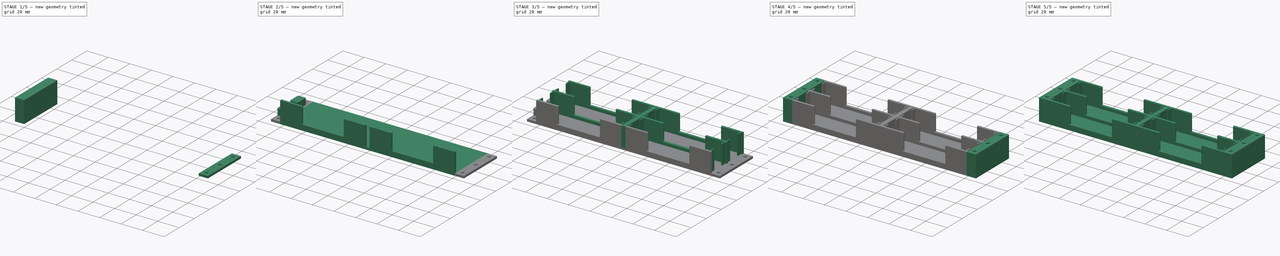
[diagram: build sequence overview — one tinted view per stage of 5, left to right]
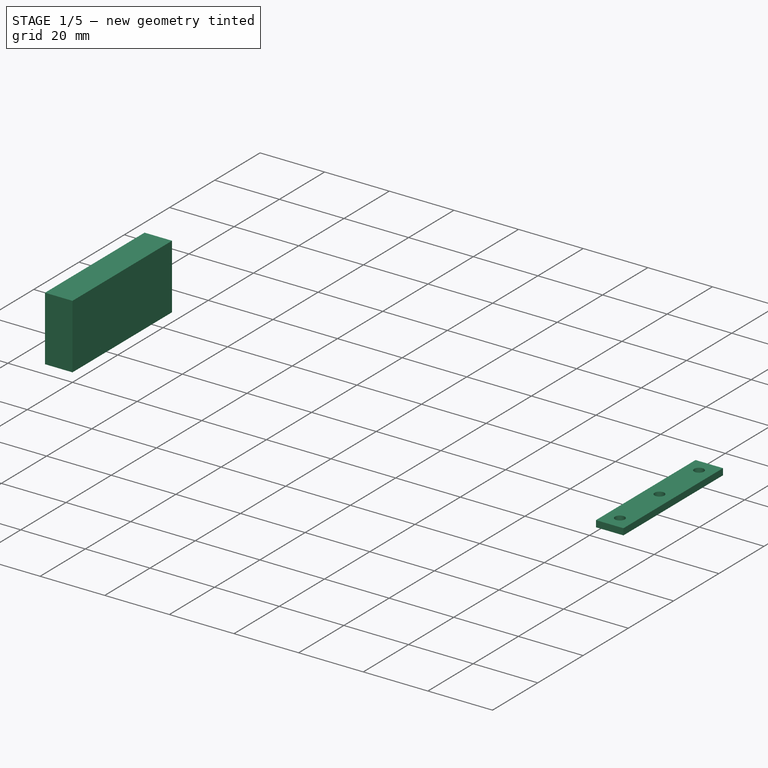
[diagram: stage 1 of 5 — iso view after this stage's code; geometry added in this stage tinted green]
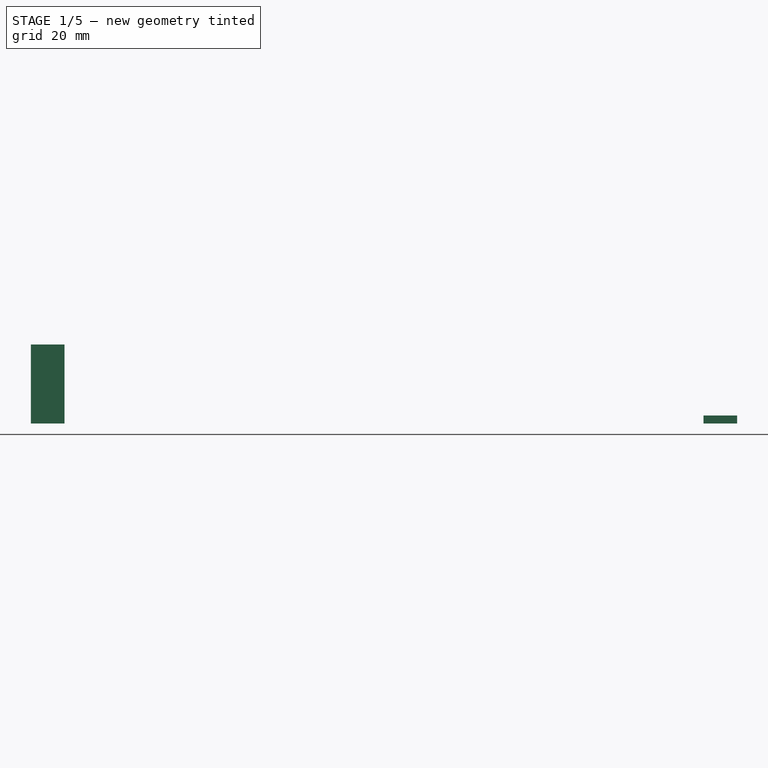
[diagram: stage 1 of 5 — front view after this stage's code; geometry added in this stage tinted green]
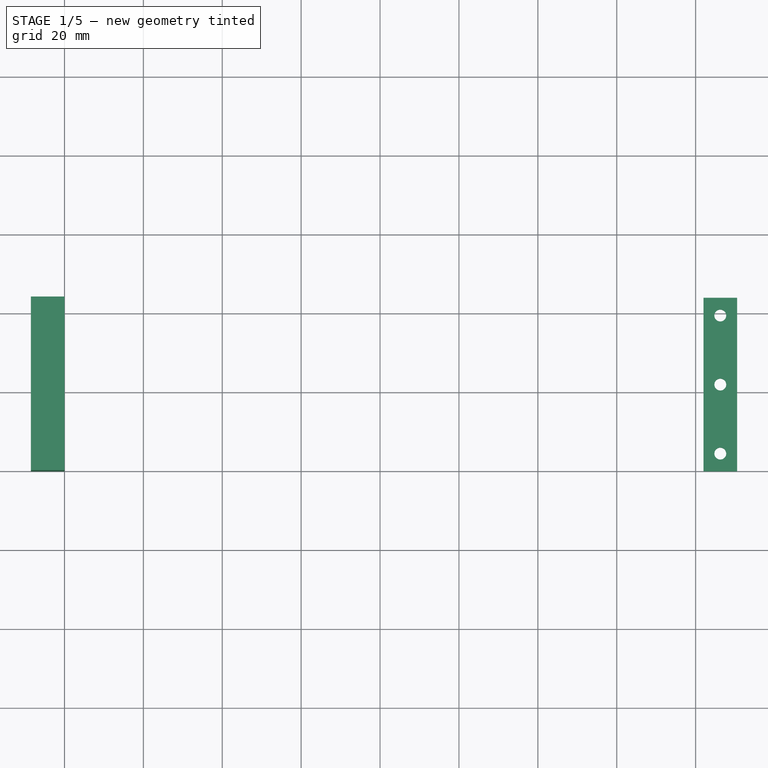
[diagram: stage 1 of 5 — top view after this stage's code; geometry added in this stage tinted green]
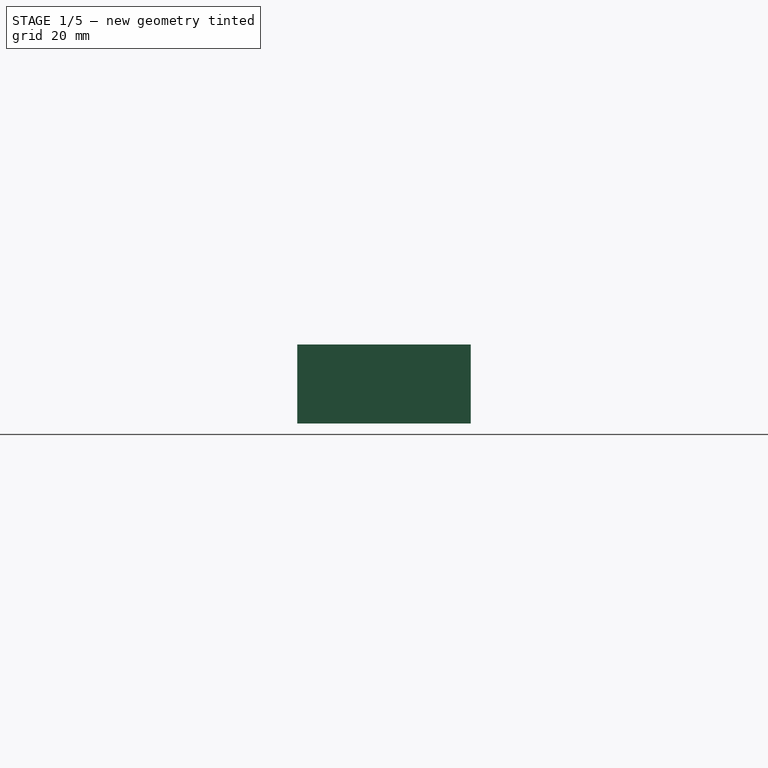
[diagram: stage 1 of 5 — right view after this stage's code; geometry added in this stage tinted green]
FCSTD DOCUMENT  (FreeCAD 0.21R33771 (Git))
Label: battery design
License: All rights reserved
LicenseURL: https://en.wikipedia.org/wiki/All_rights_reserved
objects: Sketcher::SketchObject×37, Part::Extrusion×13, PartDesign::Hole×10, PartDesign::Body×9, Part::Fillet×8, App::MeasureDistance×5, Part::Mirroring×4, PartDesign::Pad×4, PartDesign::FeatureBase×4, App::Part×3, App::LinkGroup×2, PartDesign::Pocket×2
note: 107 computed .brp shape members not serialized (recipe doc carries the construction recipe); baked Part::Feature solids carry a one-line shape summary decoded from their .brp

FEATURE [Sketcher::SketchObject] Sketch025
  FullyConstrained = true
  MapMode = 5
  Support = -> [XY_Plane008]
FEATURE [Sketcher::SketchObject] Sketch026
  FullyConstrained = true
  MapMode = 5
  Support = -> [XY_Plane008]
FEATURE [Sketcher::SketchObject] Sketch027
  FullyConstrained = true
  MapMode = 5
  Support = -> [XY_Plane008]
FEATURE [PartDesign::Body] Body007  label="terminal walls001"
  Group = -> [Sketch024,Sketch025,Sketch026,Sketch027]
  Origin = -> Origin008
  Placement = pos=(0,0,2) rot=(0,0,1;0rad)
FEATURE [Sketcher::SketchObject] Sketch028
  FullyConstrained = false
  MapMode = 5
  Support = -> [XY_Plane007]
  sketch-geometry (8):
    g0: LineSegment StartX=0 StartY=0 StartZ=0 EndX=-8.5 EndY=0 EndZ=0
    g1: LineSegment StartX=-8.5 StartY=0 StartZ=0 EndX=-8.5 EndY=44 EndZ=0
    g2: LineSegment StartX=-8.5 StartY=44 StartZ=0 EndX=0 EndY=44 EndZ=0
    g3: LineSegment StartX=0 StartY=44 StartZ=0 EndX=0 EndY=0 EndZ=0
    g4: LineSegment StartX=162 StartY=0 StartZ=0 EndX=170.5 EndY=0 EndZ=0
    g5: LineSegment StartX=170.5 StartY=0 StartZ=0 EndX=170.5 EndY=44 EndZ=0
    g6: LineSegment StartX=170.5 StartY=44 StartZ=0 EndX=162 EndY=44 EndZ=0
    g7: LineSegment StartX=162 StartY=44 StartZ=0 EndX=162 EndY=0 EndZ=0
  constraints (21):
    c: Coincident(g0,g1)
    c: Coincident(g1,g2)
    c: Coincident(g2,g3)
    c: Coincident(g3,g0)
    c: Horizontal(g0)
    c: Horizontal(g2)
    c: Vertical(g1)
    c: Vertical(g3)
    c: Coincident(g0,g-1)
    c: Coincident(g4,g5)
    c: Coincident(g5,g6)
    c: Coincident(g6,g7)
    c: Coincident(g7,g4)
    c: Horizontal(g4)
    c: Horizontal(g6)
    c: Vertical(g5)
    c: Vertical(g7)
    c: DistanceY(g1,g1) = 44
    c: DistanceX(g0,g0) = 8.5
    c: DistanceX(g4,g4) = 8.5
    c: DistanceY(g5,g5) = 44
FEATURE [Sketcher::SketchObject] Sketch029
  FullyConstrained = true
  MapMode = 5
  Support = -> [XY_Plane007]
  sketch-geometry (4):
    g0: LineSegment StartX=0 StartY=0 StartZ=0 EndX=-8.5 EndY=0 EndZ=0
    g1: LineSegment StartX=-8.5 StartY=0 StartZ=0 EndX=-8.5 EndY=44 EndZ=0
    g2: LineSegment StartX=-8.5 StartY=44 StartZ=0 EndX=0 EndY=44 EndZ=0
    g3: LineSegment StartX=0 StartY=44 StartZ=0 EndX=0 EndY=0 EndZ=0
  constraints (11):
    c: Coincident(g0,g1)
    c: Coincident(g1,g2)
    c: Coincident(g2,g3)
    c: Coincident(g3,g0)
    c: Horizontal(g0)
    c: Horizontal(g2)
    c: Vertical(g1)
    c: Vertical(g3)
    c: Coincident(g0,g-1)
    c: DistanceX(g2,g2) = 8.5
    c: DistanceY(g1,g1) = 44
FEATURE [PartDesign::Pad] Pad002
  Direction = (0,0,1)
  Length = 20
  Length2 = 10
  Profile = -> Sketch029
  ReferenceAxis = -> Sketch029 [N_Axis]
  Type = 0
FEATURE [PartDesign::Hole] Hole004
  BaseFeature = -> Pad002
  CustomThreadClearance = 0
  Depth = 4
  DepthType = 0
  Diameter = 3
  DrillForDepth = false
  DrillPoint = 0
  DrillPointAngle = 118
  HoleCutCountersinkAngle = 90
  HoleCutCustomValues = false
  HoleCutDepth = 0
  HoleCutDiameter = 6.1
  HoleCutType = 0
  ModelThread = false
  Profile = -> Sketch023
  Reversed = true
  Tapered = false
  TaperedAngle = 90
  ThreadClass = 0
  ThreadDepth = 4
  ThreadDepthType = 0
  ThreadDirection = 0
  ThreadFit = 0
  ThreadSize = 0
  ThreadType = 0
  Threaded = false
  UseCustomThreadClearance = false
FEATURE [PartDesign::Body] Body010  label="RHS Roof"
  Origin = -> Origin013
FEATURE [Part::Extrusion] Extrude018
  Base = -> Sketch042
  Dir = (0,0,1)
  DirMode = 2
  FaceMakerClass = Part::FaceMakerBullseye
  LengthFwd = 2
  LengthRev = 0
  Solid = true
  Symmetric = false
FEATURE [PartDesign::FeatureBase] BaseFeature003
  BaseFeature = -> Extrude018
FEATURE [Sketcher::SketchObject] Sketch045
  FullyConstrained = false
  MapMode = 5
  Placement = pos=(0,0,2) rot=(0,0,1;0rad)
  Support = -> [BaseFeature003]
  sketch-geometry (9):
    g0: Circle CenterX=-4.2508 CenterY=4.5 CenterZ=0 NormalX=0 NormalY=0 NormalZ=1 AngleXU=0 Radius=1.5
    g1: LineSegment StartX=-4.25 StartY=0 StartZ=0 EndX=-4.25 EndY=44 EndZ=0
    g2: LineSegment StartX=-5 StartY=0 StartZ=0 EndX=-5 EndY=4.5 EndZ=0
    g3: LineSegment StartX=-5 StartY=4.5 StartZ=0 EndX=-4.25 EndY=4.5 EndZ=0
    g4: Circle CenterX=-4.25 CenterY=39.5 CenterZ=0 NormalX=0 NormalY=0 NormalZ=1 AngleXU=0 Radius=1.5
    g5: LineSegment StartX=-4.99988 StartY=44 StartZ=0 EndX=-4.99988 EndY=39.5006 EndZ=0
    g6: LineSegment StartX=-4.99988 StartY=39.5006 StartZ=0 EndX=-4.25 EndY=39.5006 EndZ=0
    g7: Circle CenterX=-4.25453 CenterY=22 CenterZ=0 NormalX=0 NormalY=0 NormalZ=1 AngleXU=0 Radius=1.5
    g8: Circle CenterX=-4.25 CenterY=4.5 CenterZ=0 NormalX=0 NormalY=0 NormalZ=1 AngleXU=0 Radius=1.5
  constraints (16):
    c: Diameter(g0) = 3
    c: Vertical(g1)
    c: DistanceY(g1,g1) = 44
    c: Vertical(g2)
    c: DistanceY(g2,g2) = 4.5
    c: Coincident(g2,g3)
    c: PointOnObject(g3,g1)
    c: Horizontal(g3)
    c: DistanceX(g3,g3) = 0.75
    c: Diameter(g4) = 3
    c: Vertical(g5)
    c: Coincident(g5,g6)
    c: PointOnObject(g6,g1)
    c: Horizontal(g6)
    c: Diameter(g7) = 3
    c: Diameter(g8) = 3
FEATURE [PartDesign::Hole] Hole009
  BaseFeature = -> BaseFeature003
  CustomThreadClearance = 0
  Depth = 2
  DepthType = 0
  Diameter = 3
  DrillForDepth = false
  DrillPoint = 0
  DrillPointAngle = 118
  HoleCutCountersinkAngle = 90
  HoleCutCustomValues = false
  HoleCutDepth = 0
  HoleCutDiameter = 6.1
  HoleCutType = 0
  ModelThread = false
  Profile = -> Sketch045
  Tapered = false
  TaperedAngle = 90
  ThreadClass = 0
  ThreadDepth = 2
  ThreadDepthType = 0
  ThreadDirection = 0
  ThreadFit = 0
  ThreadSize = 0
  ThreadType = 0
  Threaded = false
  UseCustomThreadClearance = false
FEATURE [PartDesign::Body] Body011  label="LHS roof"
  BaseFeature = -> Extrude018
  Group = -> [BaseFeature003,Sketch045,Hole009]
  Origin = -> Origin014
  Tip = -> Hole009
FEATURE [Part::Extrusion] Extrude017
  Base = -> Sketch043
  Dir = (0,0,1)
  DirMode = 2
  FaceMakerClass = Part::FaceMakerBullseye
  LengthFwd = 2
  LengthRev = 0
  Solid = true
  Symmetric = false
FEATURE [Sketcher::SketchObject] Sketch044
  FullyConstrained = false
  MapMode = 5
  Placement = pos=(0,0,2) rot=(0,0,1;0rad)
  Support = -> [Extrude017]
  sketch-geometry (10):
    g0: Circle CenterX=166.245 CenterY=39.5 CenterZ=0 NormalX=0 NormalY=0 NormalZ=1 AngleXU=0 Radius=1.5
    g1: LineSegment StartX=161.998 StartY=44 StartZ=0 EndX=166.248 EndY=44 EndZ=0
    g2: LineSegment StartX=161.998 StartY=0 StartZ=0 EndX=166.248 EndY=0 EndZ=0
    g3: LineSegment StartX=166.248 StartY=0 StartZ=0 EndX=166.248 EndY=44 EndZ=0
    g4: LineSegment StartX=167 StartY=44 StartZ=0 EndX=167 EndY=39.5 EndZ=0
    g5: LineSegment StartX=167 StartY=39.5 StartZ=0 EndX=166.248 EndY=39.5 EndZ=0
    g6: Circle CenterX=166.248 CenterY=22 CenterZ=0 NormalX=0 NormalY=0 NormalZ=1 AngleXU=0 Radius=1.5
    g7: LineSegment StartX=166.998 StartY=0 StartZ=0 EndX=166.998 EndY=4.5 EndZ=0
    g8: LineSegment StartX=166.998 StartY=4.5 StartZ=0 EndX=166.248 EndY=4.5 EndZ=0
    g9: Circle CenterX=166.248 CenterY=4.5 CenterZ=0 NormalX=0 NormalY=0 NormalZ=1 AngleXU=0 Radius=1.5
  constraints (20):
    c: Diameter(g0) = 3
    c: Horizontal(g1)
    c: DistanceX(g1,g1) = 4.25
    c: PointOnObject(g2,g-1)
    c: PointOnObject(g2,g-1)
    c: DistanceX(g2,g2) = 4.25
    c: Coincident(g2,g3)
    c: Coincident(g3,g1)
    c: Vertical(g3)
    c: DistanceY(g3,g3) = 44
    c: Vertical(g4)
    c: Coincident(g4,g5)
    c: PointOnObject(g5,g3)
    c: Horizontal(g5)
    c: Equal(g0,g6) = 3
    c: PointOnObject(g7,g-1)
    c: Vertical(g7)
    c: Coincident(g7,g8)
    c: PointOnObject(g8,g3)
    c: Horizontal(g8)
FEATURE [PartDesign::FeatureBase] BaseFeature002
  BaseFeature = -> Extrude017
FEATURE [PartDesign::Hole] Hole008
  BaseFeature = -> BaseFeature002
  CustomThreadClearance = 0
  Depth = 2
  DepthType = 0
  Diameter = 3
  DrillForDepth = false
  DrillPoint = 0
  DrillPointAngle = 118
  HoleCutCountersinkAngle = 90
  HoleCutCustomValues = false
  HoleCutDepth = 0
  HoleCutDiameter = 6.1
  HoleCutType = 0
  ModelThread = false
  Profile = -> Sketch044
  Tapered = false
  TaperedAngle = 90
  ThreadClass = 0
  ThreadDepth = 2
  ThreadDepthType = 0
  ThreadDirection = 0
  ThreadFit = 0
  ThreadSize = 0
  ThreadType = 0
  Threaded = false
  UseCustomThreadClearance = false
FEATURE [App::Part] Part002  label="Battery Row Roof"
  Group = -> [Body009,Sketch041,Extrude015,Body010,Body011,Hole008,Sketch043,Sketch044,BaseFeature002,Extrude017,Sketch042,Extrude018]
  Origin = -> Origin011
  Placement = pos=(0,0,36) rot=(0,0,1;0rad)
FEATURE [App::MeasureDistance] Distance  label="Distance: 2.75 mm"
  Distance = 2.75269
  P1 = (167.748,22,36)
  P2 = (170.5,21.9621,36)
FEATURE [App::MeasureDistance] Distance001  label="Distance: 2.76 mm"
  Distance = 2.75721
  P1 = (164.757,22.0791,36)
  P2 = (162,22.0907,36)
FEATURE [App::MeasureDistance] Distance002  label="Distance: 2.98 mm"
  Distance = 2.97814
  P1 = (166.231,20.5109,36)
  P2 = (166.24,23.4891,36)
FEATURE [App::MeasureDistance] Distance003  label="Distance: 8.00 mm"
  Distance = 8.00005
  P1 = (166.19,22.0214,24)
  P2 = (166.218,22.0291,32)
FEATURE [App::MeasureDistance] Distance004  label="Distance: 4.00 mm"
  Distance = 4.00089
  P1 = (164.786,21.9493,32)
  P2 = (164.751,22.0257,36)
FEATURE [PartDesign::Body] Body008  label="RHS and heat holes001"
  BaseFeature = -> Fillet007
  Group = -> [BaseFeature,Sketch030,Sketch031,Pad003,Hole005,Sketch033,Hole007,Sketch039,Pocket001,Sketch040]
  Origin = -> Origin009
  Tip = -> Pocket001
FEATURE [PartDesign::Hole] Hole005
  BaseFeature = -> Pad003
  CustomThreadClearance = 0
  Depth = 4
  DepthType = 0
  Diameter = 3
  DrillForDepth = false
  DrillPoint = 0
  DrillPointAngle = 118
  HoleCutCountersinkAngle = 90
  HoleCutCustomValues = false
  HoleCutDepth = 0
  HoleCutDiameter = 6.1
  HoleCutType = 0
  ModelThread = false
  Profile = -> Sketch030
  Reversed = true
  Tapered = false
  TaperedAngle = 90
  ThreadClass = 0
  ThreadDepth = 4
  ThreadDepthType = 0
  ThreadDirection = 0
  ThreadFit = 0
  ThreadSize = 0
  ThreadType = 0
  Threaded = false
  UseCustomThreadClearance = false
FEATURE [PartDesign::Hole] Hole007
  BaseFeature = -> Hole005
  CustomThreadClearance = 0
  Depth = 4
  DepthType = 0
  Diameter = 3
  DrillForDepth = false
  DrillPoint = 0
  DrillPointAngle = 118
  HoleCutCountersinkAngle = 90
  HoleCutCustomValues = false
  HoleCutDepth = 0
  HoleCutDiameter = 6.1
  HoleCutType = 0
  ModelThread = false
  Profile = -> Sketch033
  Tapered = false
  TaperedAngle = 90
  ThreadClass = 0
  ThreadDepth = 4
  ThreadDepthType = 0
  ThreadDirection = 0
  ThreadFit = 0
  ThreadSize = 0
  ThreadType = 0
  Threaded = false
  UseCustomThreadClearance = false
FEATURE [App::LinkGroup] LinkGroup001  label="TOP ROW"
  ElementList = -> [Extrude011,Body007,Extrude010,Fillet005,Fillet004,Body006,Fillet003,Extrude009,Body008,Fillet006,Fillet007]
  LinkMode = 0
  Placement = pos=(0,1.90735e-06,-4) rot=(0,0,1;0rad)
FEATURE [PartDesign::Pad] Pad003
  BaseFeature = -> BaseFeature
  Direction = (0,0,1)
  Length = 20
  Length2 = 10
  Profile = -> Sketch031
  ReferenceAxis = -> Sketch031 [N_Axis]
  Type = 0
FEATURE [App::Part] Part001  label="Batt Top Row"
  Group = -> [LinkGroup001]
  Origin = -> Origin010
  Placement = pos=(0,0,20) rot=(0,0,1;0rad)
FEATURE [Sketcher::SketchObject] Sketch033
  FullyConstrained = false
  MapMode = 5
  Placement = pos=(0,0,20) rot=(0,0,1;0rad)
  Support = -> [Hole005]
  sketch-geometry (10):
    g0: Circle CenterX=166.245 CenterY=39.5 CenterZ=0 NormalX=0 NormalY=0 NormalZ=1 AngleXU=0 Radius=1.5
    g1: LineSegment StartX=161.998 StartY=44 StartZ=0 EndX=166.248 EndY=44 EndZ=0
    g2: LineSegment StartX=161.998 StartY=0 StartZ=0 EndX=166.248 EndY=0 EndZ=0
    g3: LineSegment StartX=166.248 StartY=0 StartZ=0 EndX=166.248 EndY=44 EndZ=0
    g4: LineSegment StartX=167 StartY=44 StartZ=0 EndX=167 EndY=39.5 EndZ=0
    g5: LineSegment StartX=167 StartY=39.5 StartZ=0 EndX=166.248 EndY=39.5 EndZ=0
    g6: Circle CenterX=166.248 CenterY=22 CenterZ=0 NormalX=0 NormalY=0 NormalZ=1 AngleXU=0 Radius=1.5
    g7: LineSegment StartX=166.998 StartY=0 StartZ=0 EndX=166.998 EndY=4.5 EndZ=0
    g8: LineSegment StartX=166.998 StartY=4.5 StartZ=0 EndX=166.248 EndY=4.5 EndZ=0
    g9: Circle CenterX=166.248 CenterY=4.5 CenterZ=0 NormalX=0 NormalY=0 NormalZ=1 AngleXU=0 Radius=1.5
  constraints (20):
    c: Diameter(g0) = 3
    c: Horizontal(g1)
    c: DistanceX(g1,g1) = 4.25
    c: PointOnObject(g2,g-1)
    c: PointOnObject(g2,g-1)
    c: DistanceX(g2,g2) = 4.25
    c: Coincident(g2,g3)
    c: Coincident(g3,g1)
    c: Vertical(g3)
    c: DistanceY(g3,g3) = 44
    c: Vertical(g4)
    c: Coincident(g4,g5)
    c: PointOnObject(g5,g3)
    c: Horizontal(g5)
    c: Equal(g0,g6) = 3
    c: PointOnObject(g7,g-1)
    c: Vertical(g7)
    c: Coincident(g7,g8)
    c: PointOnObject(g8,g3)
    c: Horizontal(g8)
FEATURE [Sketcher::SketchObject] Sketch039
  FullyConstrained = false
  MapMode = 5
  Placement = pos=(170.5,0,0) rot=(0.57735,0.57735,0.57735;2.0944rad)
  Support = -> [Hole007]
  sketch-geometry (4):
    g0: LineSegment StartX=44 StartY=2 StartZ=0 EndX=0 EndY=2 EndZ=0
    g1: LineSegment StartX=0 StartY=2 StartZ=0 EndX=0 EndY=8 EndZ=0
    g2: LineSegment StartX=0 StartY=8 StartZ=0 EndX=44 EndY=8 EndZ=0
    g3: LineSegment StartX=44 StartY=8 StartZ=0 EndX=44 EndY=2 EndZ=0
  constraints (10):
    c: Coincident(g0,g1)
    c: Coincident(g1,g2)
    c: Coincident(g2,g3)
    c: Coincident(g3,g0)
    c: Horizontal(g0)
    c: Horizontal(g2)
    c: Vertical(g1)
    c: Vertical(g3)
    c: DistanceX(g2,g2) = 44
    c: DistanceY(g3,g3) = 6
FEATURE [PartDesign::Pocket] Pocket001
  BaseFeature = -> Hole007
  Direction = (-1,0,0)
  Length = 7
  Length2 = 5
  Profile = -> Sketch039
  ReferenceAxis = -> Sketch039 [N_Axis]
  Type = 0
FEATURE [Sketcher::SketchObject] Sketch040
  FullyConstrained = false
  MapMode = 5
  Placement = pos=(163.5,0,0) rot=(0.57735,0.57735,0.57735;2.0944rad)
  Support = -> [Pocket001]
  sketch-geometry (8):
    g0: LineSegment StartX=25 StartY=2 StartZ=0 EndX=36 EndY=2 EndZ=0
    g1: LineSegment StartX=36 StartY=2 StartZ=0 EndX=36 EndY=8 EndZ=0
    g2: LineSegment StartX=36 StartY=8 StartZ=0 EndX=25 EndY=8 EndZ=0
    g3: LineSegment StartX=25 StartY=8 StartZ=0 EndX=25 EndY=2 EndZ=0
    g4: LineSegment StartX=19 StartY=2 StartZ=0 EndX=8 EndY=2 EndZ=0
    g5: LineSegment StartX=8 StartY=2 StartZ=0 EndX=8 EndY=8 EndZ=0
    g6: LineSegment StartX=8 StartY=8 StartZ=0 EndX=19 EndY=8 EndZ=0
    g7: LineSegment StartX=19 StartY=8 StartZ=0 EndX=19 EndY=2 EndZ=0
  constraints (20):
    c: Coincident(g0,g1)
    c: Coincident(g1,g2)
    c: Coincident(g2,g3)
    c: Coincident(g3,g0)
    c: Horizontal(g0)
    c: Horizontal(g2)
    c: Vertical(g1)
    c: Vertical(g3)
    c: Coincident(g4,g5)
    c: Coincident(g5,g6)
    c: Coincident(g6,g7)
    c: Coincident(g7,g4)
    c: Horizontal(g4)
    c: Horizontal(g6)
    c: Vertical(g5)
    c: Vertical(g7)
    c: DistanceY(g7,g7) = 6
    c: DistanceY(g3,g3) = 6
    c: DistanceX(g6,g6) = 11
    c: DistanceX(g2,g2) = 11
FEATURE [PartDesign::FeatureBase] BaseFeature
  BaseFeature = -> Fillet007
FEATURE [Part::Extrusion] Extrude014
  Base = -> Sketch040
  Dir = (1,0,0)
  DirMode = 2
  FaceMakerClass = Part::FaceMakerBullseye
  LengthFwd = 7
  LengthRev = 0
  Solid = true
  Symmetric = false
FEATURE [Part::Fillet] Fillet007
  Base = -> Extrude014
  Edges = 4 edges r=1: [Edge7,Edge12,Edge19,Edge24]
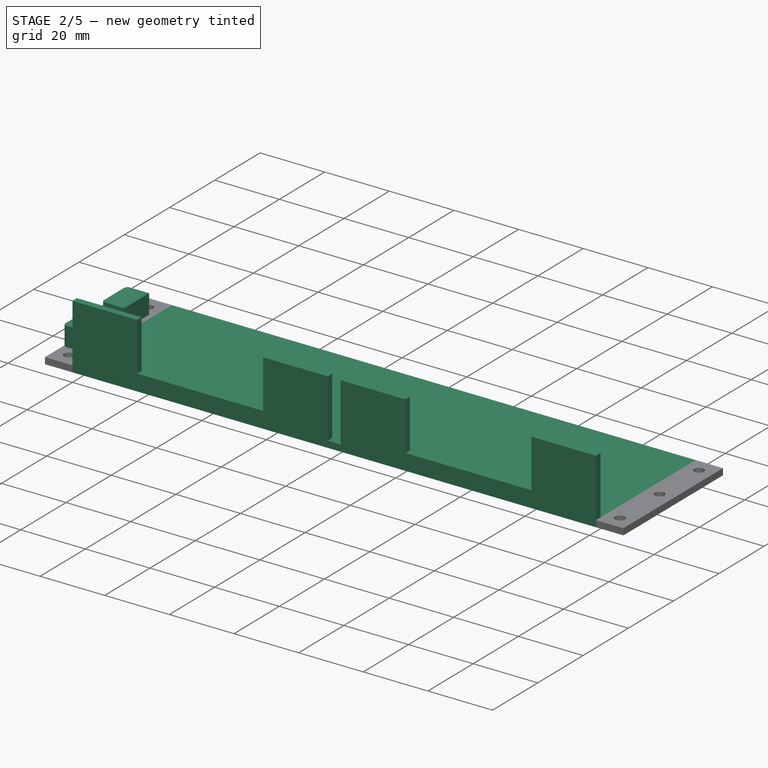
[diagram: stage 2 of 5 — iso view after this stage's code; geometry added in this stage tinted green]
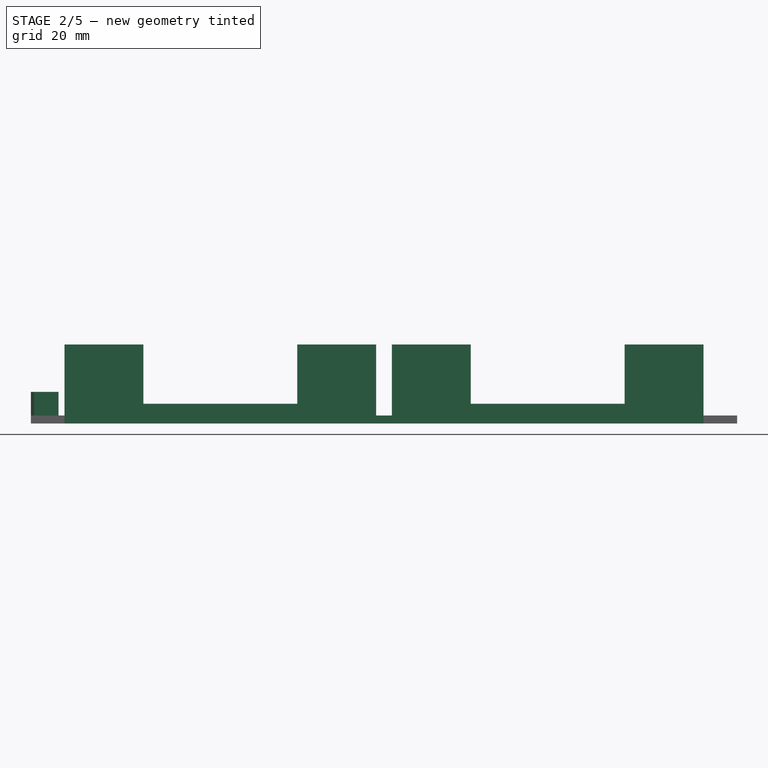
[diagram: stage 2 of 5 — front view after this stage's code; geometry added in this stage tinted green]
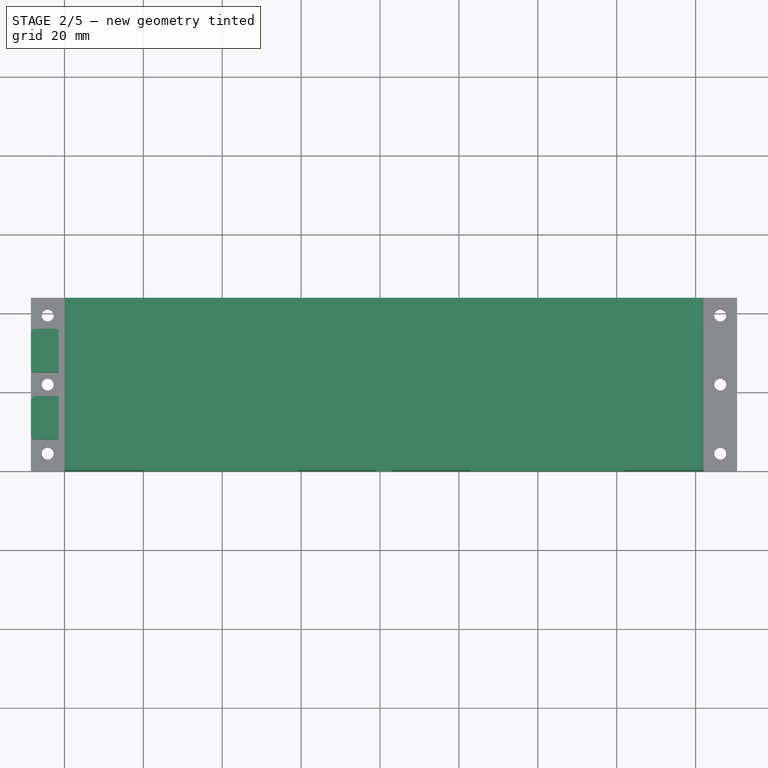
[diagram: stage 2 of 5 — top view after this stage's code; geometry added in this stage tinted green]
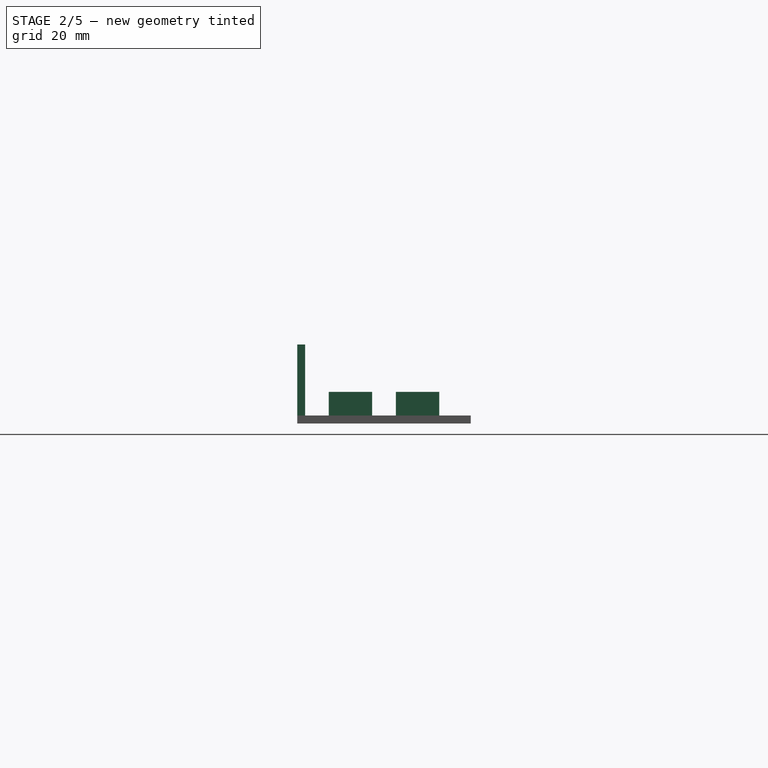
[diagram: stage 2 of 5 — right view after this stage's code; geometry added in this stage tinted green]
FEATURE [Sketcher::SketchObject] Sketch021
  FullyConstrained = false
  MapMode = 5
  Placement = pos=(0,0,0) rot=(1,0,0;1.5708rad)
  Support = -> [XZ_Plane007]
  sketch-geometry (16):
    g0: LineSegment StartX=0 StartY=2 StartZ=0 EndX=0 EndY=20 EndZ=0
    g1: LineSegment StartX=0 StartY=20 StartZ=0 EndX=20 EndY=20 EndZ=0
    g2: LineSegment StartX=162 StartY=2 StartZ=0 EndX=162 EndY=20 EndZ=0
    g3: LineSegment StartX=162 StartY=20 StartZ=0 EndX=142 EndY=20 EndZ=0
    g4: LineSegment StartX=142 StartY=20 StartZ=0 EndX=142 EndY=5 EndZ=0
    g5: LineSegment StartX=20 StartY=5 StartZ=0 EndX=59 EndY=5 EndZ=0
    g6: LineSegment StartX=59 StartY=20 StartZ=0 EndX=79 EndY=20 EndZ=0
    g7: LineSegment StartX=79 StartY=20 StartZ=0 EndX=79 EndY=2 EndZ=0
    g8: LineSegment StartX=142 StartY=5 StartZ=0 EndX=103 EndY=5 EndZ=0
    g9: LineSegment StartX=103 StartY=5 StartZ=0 EndX=103 EndY=20 EndZ=0
    g10: LineSegment StartX=103 StartY=20 StartZ=0 EndX=83 EndY=20 EndZ=0
    g11: LineSegment StartX=83 StartY=20 StartZ=0 EndX=83 EndY=2 EndZ=0
    g12: LineSegment StartX=79 StartY=2 StartZ=0 EndX=0 EndY=2 EndZ=0
    g13: LineSegment StartX=20 StartY=20 StartZ=0 EndX=20 EndY=5 EndZ=0
    g14: LineSegment StartX=59 StartY=20 StartZ=0 EndX=59 EndY=5 EndZ=0
    g15: LineSegment StartX=83 StartY=2 StartZ=0 EndX=162 EndY=2 EndZ=0
  constraints (45):
    c: PointOnObject(g0,g-2)
    c: Vertical(g0)
    c: Coincident(g0,g1)
    c: Horizontal(g1)
    c: Vertical(g2)
    c: Coincident(g2,g3)
    c: Horizontal(g3)
    c: Coincident(g3,g4)
    c: Vertical(g4)
    c: Horizontal(g5)
    c: Horizontal(g6)
    c: Coincident(g6,g7)
    c: Vertical(g7)
    c: Coincident(g4,g8)
    c: Horizontal(g8)
    c: Coincident(g8,g9)
    c: Vertical(g9)
    c: Coincident(g9,g10)
    c: Horizontal(g10)
    c: Coincident(g10,g11)
    c: Vertical(g11)
    c: Coincident(g7,g12)
    c: Coincident(g12,g0)
    c: Horizontal(g12)
    c: Coincident(g1,g13)
    c: Coincident(g13,g5)
    c: Vertical(g13)
    c: Coincident(g6,g14)
    c: Coincident(g14,g5)
    c: Vertical(g14)
    c: Coincident(g11,g15)
    c: Coincident(g15,g2)
    c: Horizontal(g15)
    c: DistanceX(g10,g10) = 20
    c: DistanceX(g3,g3) = 20
    c: DistanceX(g8,g8) = 39
    c: DistanceY(g9,g9) = 15
    c: DistanceY(g11,g11) = 18
    c: DistanceY(g4,g4) = 15
    c: DistanceY(g7,g7) = 18
    c: DistanceY(g14,g14) = 15
    c: DistanceX(g6,g6) = 20
    c: DistanceX(g5,g5) = 39
    c: DistanceX(g1,g1) = 20
    c: DistanceY(g13,g13) = 15
FEATURE [Part::Extrusion] Extrude008  label="front side001"
  Base = -> Sketch021
  Dir = (0,-1,2e-16)
  DirMode = 2
  FaceMakerClass = Part::FaceMakerBullseye
  LengthFwd = 2
  LengthRev = 0
  Reversed = true
  Solid = true
  Symmetric = false
FEATURE [Sketcher::SketchObject] Sketch030
  FullyConstrained = false
  MapMode = 5
  Support = -> [XY_Plane009]
  sketch-geometry (10):
    g0: Circle CenterX=166.245 CenterY=39.5 CenterZ=0 NormalX=0 NormalY=0 NormalZ=1 AngleXU=0 Radius=1.5
    g1: LineSegment StartX=161.998 StartY=44 StartZ=0 EndX=166.248 EndY=44 EndZ=0
    g2: LineSegment StartX=161.998 StartY=0 StartZ=0 EndX=166.248 EndY=0 EndZ=0
    g3: LineSegment StartX=166.248 StartY=0 StartZ=0 EndX=166.248 EndY=44 EndZ=0
    g4: LineSegment StartX=167 StartY=44 StartZ=0 EndX=167 EndY=39.5 EndZ=0
    g5: LineSegment StartX=167 StartY=39.5 StartZ=0 EndX=166.248 EndY=39.5 EndZ=0
    g6: Circle CenterX=166.248 CenterY=22 CenterZ=0 NormalX=0 NormalY=0 NormalZ=1 AngleXU=0 Radius=1.5
    g7: LineSegment StartX=166.998 StartY=0 StartZ=0 EndX=166.998 EndY=4.5 EndZ=0
    g8: LineSegment StartX=166.998 StartY=4.5 StartZ=0 EndX=166.248 EndY=4.5 EndZ=0
    g9: Circle CenterX=166.248 CenterY=4.5 CenterZ=0 NormalX=0 NormalY=0 NormalZ=1 AngleXU=0 Radius=1.5
  constraints (20):
    c: Diameter(g0) = 3
    c: Horizontal(g1)
    c: DistanceX(g1,g1) = 4.25
    c: PointOnObject(g2,g-1)
    c: PointOnObject(g2,g-1)
    c: DistanceX(g2,g2) = 4.25
    c: Coincident(g2,g3)
    c: Coincident(g3,g1)
    c: Vertical(g3)
    c: DistanceY(g3,g3) = 44
    c: Vertical(g4)
    c: Coincident(g4,g5)
    c: PointOnObject(g5,g3)
    c: Horizontal(g5)
    c: Equal(g0,g6) = 3
    c: PointOnObject(g7,g-1)
    c: Vertical(g7)
    c: Coincident(g7,g8)
    c: PointOnObject(g8,g3)
    c: Horizontal(g8)
FEATURE [Sketcher::SketchObject] Sketch031
  FullyConstrained = false
  MapMode = 5
  Support = -> [XY_Plane009]
  sketch-geometry (4):
    g0: LineSegment StartX=162 StartY=0 StartZ=0 EndX=170.5 EndY=0 EndZ=0
    g1: LineSegment StartX=170.5 StartY=0 StartZ=0 EndX=170.5 EndY=44 EndZ=0
    g2: LineSegment StartX=170.5 StartY=44 StartZ=0 EndX=162 EndY=44 EndZ=0
    g3: LineSegment StartX=162 StartY=44 StartZ=0 EndX=162 EndY=0 EndZ=0
  constraints (10):
    c: Coincident(g0,g1)
    c: Coincident(g1,g2)
    c: Coincident(g2,g3)
    c: Coincident(g3,g0)
    c: Horizontal(g0)
    c: Horizontal(g2)
    c: Vertical(g1)
    c: Vertical(g3)
    c: DistanceY(g1,g1) = 44
    c: DistanceX(g2,g2) = 8.5
FEATURE [Sketcher::SketchObject] Sketch032
  FullyConstrained = false
  MapMode = 5
  Placement = pos=(0,0,20) rot=(0,0,1;0rad)
  Support = -> [Hole004]
  sketch-geometry (9):
    g0: Circle CenterX=-4.2508 CenterY=4.5 CenterZ=0 NormalX=0 NormalY=0 NormalZ=1 AngleXU=0 Radius=1.5
    g1: LineSegment StartX=-4.25 StartY=0 StartZ=0 EndX=-4.25 EndY=44 EndZ=0
    g2: LineSegment StartX=-5 StartY=0 StartZ=0 EndX=-5 EndY=4.5 EndZ=0
    g3: LineSegment StartX=-5 StartY=4.5 StartZ=0 EndX=-4.25 EndY=4.5 EndZ=0
    g4: Circle CenterX=-4.25 CenterY=39.5 CenterZ=0 NormalX=0 NormalY=0 NormalZ=1 AngleXU=0 Radius=1.5
    g5: LineSegment StartX=-4.99988 StartY=44 StartZ=0 EndX=-4.99988 EndY=39.5006 EndZ=0
    g6: LineSegment StartX=-4.99988 StartY=39.5006 StartZ=0 EndX=-4.25 EndY=39.5006 EndZ=0
    g7: Circle CenterX=-4.25453 CenterY=22 CenterZ=0 NormalX=0 NormalY=0 NormalZ=1 AngleXU=0 Radius=1.5
    g8: Circle CenterX=-4.25 CenterY=4.5 CenterZ=0 NormalX=0 NormalY=0 NormalZ=1 AngleXU=0 Radius=1.5
  constraints (16):
    c: Diameter(g0) = 3
    c: Vertical(g1)
    c: DistanceY(g1,g1) = 44
    c: Vertical(g2)
    c: DistanceY(g2,g2) = 4.5
    c: Coincident(g2,g3)
    c: PointOnObject(g3,g1)
    c: Horizontal(g3)
    c: DistanceX(g3,g3) = 0.75
    c: Diameter(g4) = 3
    c: Vertical(g5)
    c: Coincident(g5,g6)
    c: PointOnObject(g6,g1)
    c: Horizontal(g6)
    c: Diameter(g7) = 3
    c: Diameter(g8) = 3
FEATURE [PartDesign::Hole] Hole006
  BaseFeature = -> Hole004
  CustomThreadClearance = 0
  Depth = 4
  DepthType = 0
  Diameter = 3
  DrillForDepth = false
  DrillPoint = 0
  DrillPointAngle = 118
  HoleCutCountersinkAngle = 90
  HoleCutCustomValues = false
  HoleCutDepth = 0
  HoleCutDiameter = 6.1
  HoleCutType = 0
  ModelThread = false
  Profile = -> Sketch032
  Tapered = false
  TaperedAngle = 90
  ThreadClass = 0
  ThreadDepth = 4
  ThreadDepthType = 0
  ThreadDirection = 0
  ThreadFit = 0
  ThreadSize = 0
  ThreadType = 0
  Threaded = false
  UseCustomThreadClearance = false
FEATURE [Sketcher::SketchObject] Sketch034
  FullyConstrained = false
  MapMode = 5
  Placement = pos=(-8.5,0,0) rot=(0.57735,-0.57735,-0.57735;2.0944rad)
  Support = -> [Hole006]
  sketch-geometry (4):
    g0: LineSegment StartX=0 StartY=2 StartZ=0 EndX=-44 EndY=2 EndZ=0
    g1: LineSegment StartX=-44 StartY=2 StartZ=0 EndX=-44 EndY=8 EndZ=0
    g2: LineSegment StartX=-44 StartY=8 StartZ=0 EndX=0 EndY=8 EndZ=0
    g3: LineSegment StartX=0 StartY=8 StartZ=0 EndX=0 EndY=2 EndZ=0
  constraints (11):
    c: Coincident(g0,g1)
    c: Coincident(g1,g2)
    c: Coincident(g2,g3)
    c: Coincident(g3,g0)
    c: Horizontal(g0)
    c: Horizontal(g2)
    c: Vertical(g1)
    c: Vertical(g3)
    c: PointOnObject(g0,g-2)
    c: DistanceY(g3,g3) = 6
    c: DistanceX(g0,g0) = 44
FEATURE [Sketcher::SketchObject] Sketch041
  FullyConstrained = true
  MapMode = 5
  Support = -> [XY_Plane012]
  sketch-geometry (4):
    g0: LineSegment StartX=0 StartY=0 StartZ=0 EndX=162 EndY=0 EndZ=0
    g1: LineSegment StartX=162 StartY=0 StartZ=0 EndX=162 EndY=44 EndZ=0
    g2: LineSegment StartX=162 StartY=44 StartZ=0 EndX=0 EndY=44 EndZ=0
    g3: LineSegment StartX=0 StartY=44 StartZ=0 EndX=0 EndY=0 EndZ=0
  constraints (11):
    c: Coincident(g0,g1)
    c: Coincident(g1,g2)
    c: Coincident(g2,g3)
    c: Coincident(g3,g0)
    c: Horizontal(g0)
    c: Horizontal(g2)
    c: Vertical(g1)
    c: Vertical(g3)
    c: Coincident(g0,g-1)
    c: DistanceX(g2,g2) = 162
    c: DistanceY(g1,g1) = 44
FEATURE [Part::Extrusion] Extrude015
  Base = -> Sketch041
  Dir = (0,0,1)
  DirMode = 2
  FaceMakerClass = Part::FaceMakerBullseye
  LengthFwd = 2
  LengthRev = 0
  Solid = true
  Symmetric = false
FEATURE [PartDesign::FeatureBase] BaseFeature001
  BaseFeature = -> Extrude015
FEATURE [PartDesign::Body] Body009  label="Body"
  BaseFeature = -> Extrude015
  Group = -> [BaseFeature001]
  Origin = -> Origin012
  Tip = -> BaseFeature001
FEATURE [Sketcher::SketchObject] Sketch042
  FullyConstrained = true
  MapMode = 5
  Support = -> [XY_Plane012]
  sketch-geometry (4):
    g0: LineSegment StartX=0 StartY=0 StartZ=0 EndX=-8.5 EndY=0 EndZ=0
    g1: LineSegment StartX=-8.5 StartY=0 StartZ=0 EndX=-8.5 EndY=44 EndZ=0
    g2: LineSegment StartX=-8.5 StartY=44 StartZ=0 EndX=0 EndY=44 EndZ=0
    g3: LineSegment StartX=0 StartY=44 StartZ=0 EndX=0 EndY=0 EndZ=0
  constraints (11):
    c: Coincident(g0,g1)
    c: Coincident(g1,g2)
    c: Coincident(g2,g3)
    c: Coincident(g3,g0)
    c: Horizontal(g0)
    c: Horizontal(g2)
    c: Vertical(g1)
    c: Vertical(g3)
    c: Coincident(g0,g-1)
    c: DistanceX(g0,g0) = 8.5
    c: DistanceY(g1,g1) = 44
FEATURE [Sketcher::SketchObject] Sketch043
  FullyConstrained = false
  MapMode = 5
  Support = -> [XY_Plane012]
  sketch-geometry (4):
    g0: LineSegment StartX=161.999 StartY=0 StartZ=0 EndX=170.499 EndY=0 EndZ=0
    g1: LineSegment StartX=170.499 StartY=0 StartZ=0 EndX=170.499 EndY=44 EndZ=0
    g2: LineSegment StartX=170.499 StartY=44 StartZ=0 EndX=161.999 EndY=44 EndZ=0
    g3: LineSegment StartX=161.999 StartY=44 StartZ=0 EndX=161.999 EndY=0 EndZ=0
  constraints (10):
    c: Coincident(g0,g1)
    c: Coincident(g1,g2)
    c: Coincident(g2,g3)
    c: Coincident(g3,g0)
    c: Horizontal(g0)
    c: Horizontal(g2)
    c: Vertical(g1)
    c: Vertical(g3)
    c: DistanceY(g1,g1) = 44
    c: DistanceX(g2,g2) = 8.5
FEATURE [PartDesign::Pocket] Pocket
  BaseFeature = -> Hole006
  Direction = (1,0,0)
  Length = 7
  Length2 = 5
  Profile = -> Sketch034
  ReferenceAxis = -> Sketch034 [N_Axis]
  Type = 0
FEATURE [Sketcher::SketchObject] Sketch035
  FullyConstrained = false
  MapMode = 5
  Placement = pos=(-1.5,0,0) rot=(0.57735,-0.57735,-0.57735;2.0944rad)
  Support = -> [Pocket]
  sketch-geometry (8):
    g0: LineSegment StartX=-19 StartY=2 StartZ=0 EndX=-8 EndY=2 EndZ=0
    g1: LineSegment StartX=-8 StartY=2 StartZ=0 EndX=-8 EndY=8 EndZ=0
    g2: LineSegment StartX=-8 StartY=8 StartZ=0 EndX=-19 EndY=8 EndZ=0
    g3: LineSegment StartX=-19 StartY=8 StartZ=0 EndX=-19 EndY=2 EndZ=0
    g4: LineSegment StartX=-25 StartY=2 StartZ=0 EndX=-36 EndY=2 EndZ=0
    g5: LineSegment StartX=-36 StartY=2 StartZ=0 EndX=-36 EndY=8 EndZ=0
    g6: LineSegment StartX=-36 StartY=8 StartZ=0 EndX=-25 EndY=8 EndZ=0
    g7: LineSegment StartX=-25 StartY=8 StartZ=0 EndX=-25 EndY=2 EndZ=0
  constraints (20):
    c: Coincident(g0,g1)
    c: Coincident(g1,g2)
    c: Coincident(g2,g3)
    c: Coincident(g3,g0)
    c: Horizontal(g0)
    c: Horizontal(g2)
    c: Vertical(g1)
    c: Vertical(g3)
    c: Coincident(g4,g5)
    c: Coincident(g5,g6)
    c: Coincident(g6,g7)
    c: Coincident(g7,g4)
    c: Horizontal(g4)
    c: Horizontal(g6)
    c: Vertical(g5)
    c: Vertical(g7)
    c: DistanceY(g7,g7) = 6
    c: DistanceY(g3,g3) = 6
    c: DistanceX(g6,g6) = 11
    c: DistanceX(g2,g2) = 11
FEATURE [PartDesign::Body] Body006  label="floor and  Sides001"
  Group = -> [Sketch020,Sketch021,Sketch022,Sketch023,Sketch028,Sketch029,Pad002,Hole004,Sketch032,Hole006,Sketch034,Pocket,Sketch035]
  Origin = -> Origin007
  Tip = -> Pocket
FEATURE [Part::Extrusion] Extrude012
  Base = -> Sketch035
  Dir = (-1,0,0)
  DirMode = 2
  FaceMakerClass = Part::FaceMakerBullseye
  LengthFwd = 7
  LengthRev = 0
  Solid = true
  Symmetric = false
FEATURE [Part::Fillet] Fillet006
  Base = -> Extrude012
  Edges = 4 edges r=1: [Edge7,Edge12,Edge19,Edge24]
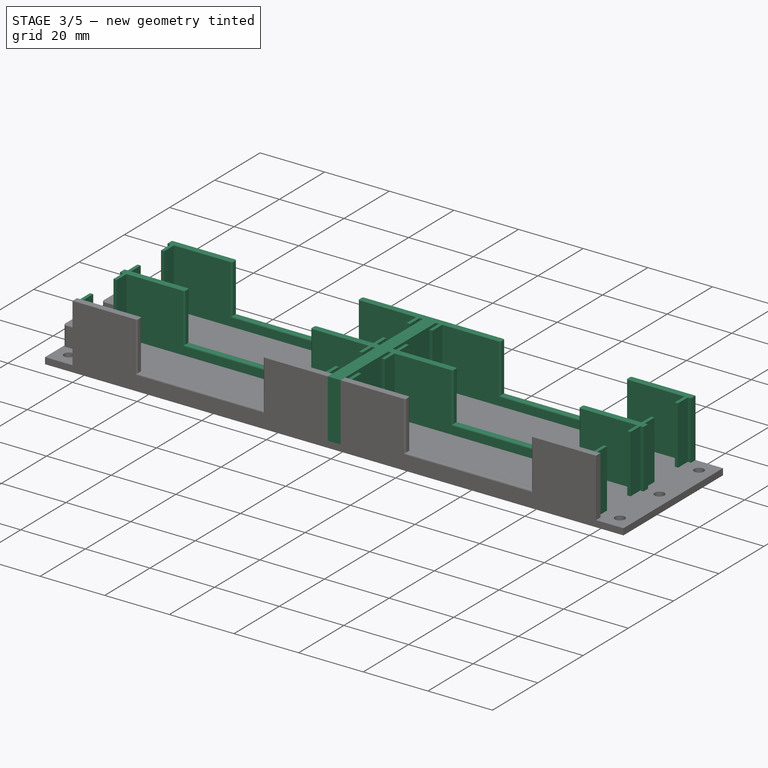
[diagram: stage 3 of 5 — iso view after this stage's code; geometry added in this stage tinted green]
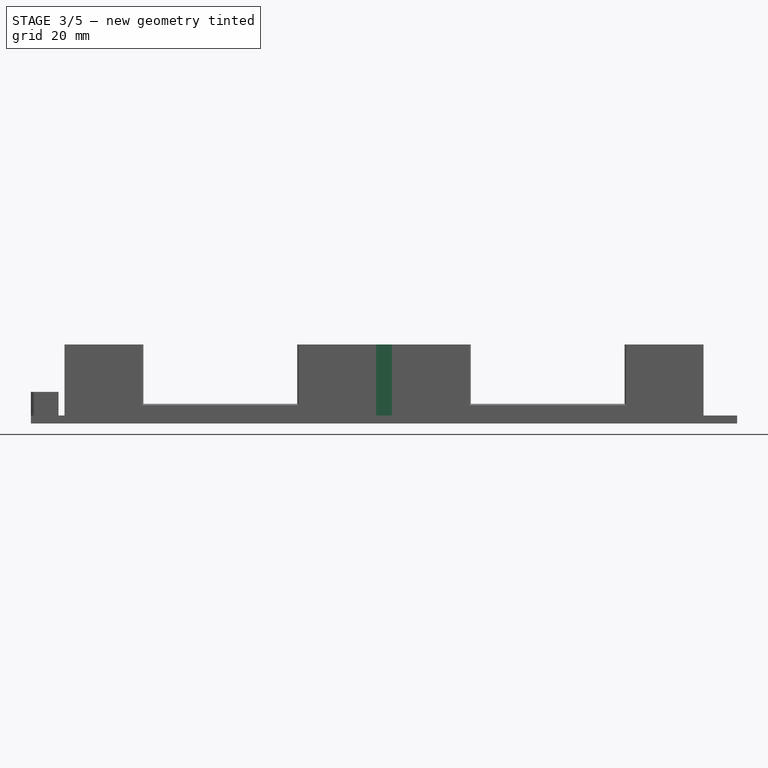
[diagram: stage 3 of 5 — front view after this stage's code; geometry added in this stage tinted green]
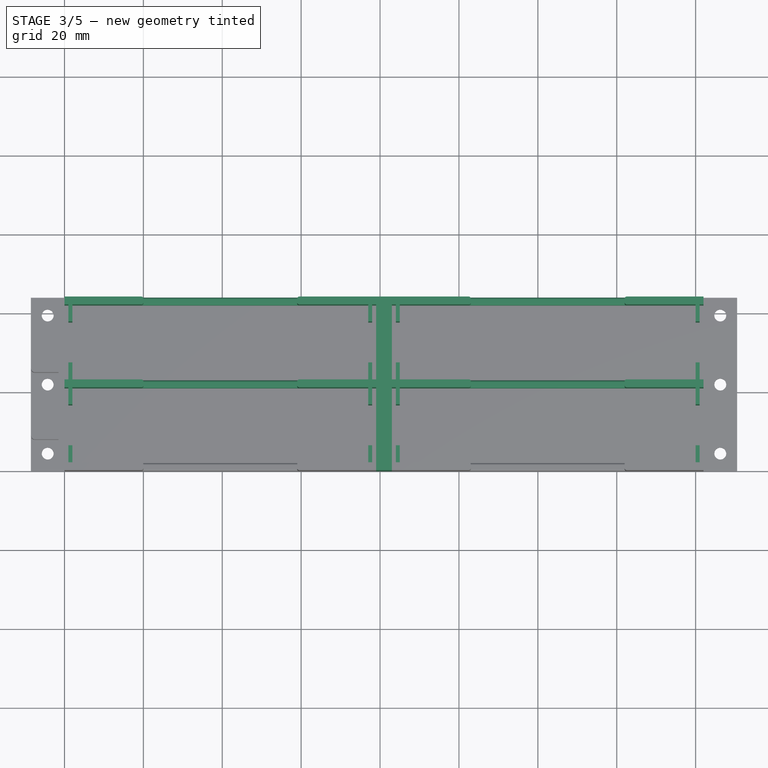
[diagram: stage 3 of 5 — top view after this stage's code; geometry added in this stage tinted green]
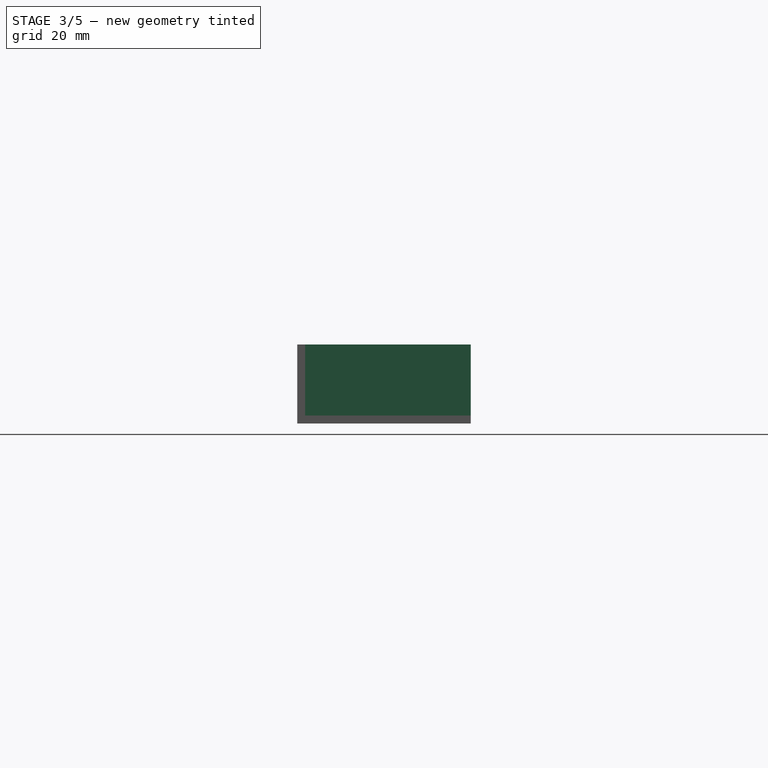
[diagram: stage 3 of 5 — right view after this stage's code; geometry added in this stage tinted green]
FEATURE [PartDesign::Body] Body005  label="RHS and heat holes"
  Group = -> [Sketch016,Sketch017,Pad001,Hole001,Sketch019,Hole003]
  Origin = -> Origin005
  Tip = -> Hole003
FEATURE [App::LinkGroup] LinkGroup  label="BOTTOM ROW"
  ElementList = -> [Extrude007,Body004,Extrude004,Fillet002,Fillet001,Body,Fillet,Extrude001,Body005]
  LinkMode = 0
  Placement = pos=(0,1.90735e-06,-4) rot=(0,0,1;0rad)
FEATURE [App::Part] Part  label="Batt Base Row"
  Group = -> [LinkGroup]
  Origin = -> Origin006
FEATURE [Sketcher::SketchObject] Sketch020
  FullyConstrained = true
  MapMode = 5
  Support = -> [XY_Plane007]
  sketch-geometry (4):
    g0: LineSegment StartX=0 StartY=0 StartZ=0 EndX=162 EndY=0 EndZ=0
    g1: LineSegment StartX=162 StartY=0 StartZ=0 EndX=162 EndY=44 EndZ=0
    g2: LineSegment StartX=162 StartY=44 StartZ=0 EndX=0 EndY=44 EndZ=0
    g3: LineSegment StartX=0 StartY=44 StartZ=0 EndX=0 EndY=0 EndZ=0
  constraints (11):
    c: Coincident(g0,g1)
    c: Coincident(g1,g2)
    c: Coincident(g2,g3)
    c: Coincident(g3,g0)
    c: Horizontal(g0)
    c: Horizontal(g2)
    c: Vertical(g1)
    c: Vertical(g3)
    c: Coincident(g0,g-1)
    c: DistanceX(g2,g2) = 162
    c: DistanceY(g3,g3) = 44
FEATURE [Part::Extrusion] Extrude010  label="BASE001"
  Base = -> Sketch020
  Dir = (0,0,1)
  DirMode = 2
  FaceMakerClass = Part::FaceMakerBullseye
  LengthFwd = 2
  LengthRev = 0
  Solid = true
  Symmetric = false
FEATURE [Part::Fillet] Fillet003  label="front row001"
  Base = -> Extrude008
  Edges = 12 edges r=0.5: [Edge9,Edge10,Edge12,Edge13,Edge15,Edge16,Edge42,Edge43,Edge45,Edge46,Edge47,Edge48]
FEATURE [Part::Mirroring] Part__Mirroring002  label="back side001"
  Base = (0,0,0)
  Normal = (0,1,0)
  Placement = pos=(0,44,0) rot=(0,0,1;0rad)
  Source = -> Extrude008
FEATURE [Part::Fillet] Fillet005  label="back row001"
  Base = -> Part__Mirroring002
  Edges = 12 edges r=0.5: [Edge9,Edge10,Edge12,Edge13,Edge15,Edge16,Edge42,Edge43,Edge45,Edge46,Edge47,Edge48]
FEATURE [Part::Mirroring] Part__Mirroring003  label="middle barrier001"
  Base = (0,0,0)
  Normal = (0,1,0)
  Placement = pos=(0,23,0) rot=(0,0,1;0rad)
  Source = -> Extrude008
FEATURE [Part::Fillet] Fillet004  label="middle row001"
  Base = -> Part__Mirroring003
  Edges = 12 edges r=0.5: [Edge9,Edge10,Edge12,Edge13,Edge15,Edge16,Edge42,Edge43,Edge45,Edge46,Edge47,Edge48]
FEATURE [Sketcher::SketchObject] Sketch022
  FullyConstrained = false
  MapMode = 5
  Placement = pos=(0,0,0) rot=(1,0,0;1.5708rad)
  Support = -> [XZ_Plane007]
  sketch-geometry (4):
    g0: LineSegment StartX=79 StartY=2 StartZ=0 EndX=83 EndY=2 EndZ=0
    g1: LineSegment StartX=83 StartY=2 StartZ=0 EndX=83 EndY=20 EndZ=0
    g2: LineSegment StartX=83 StartY=20 StartZ=0 EndX=79 EndY=20 EndZ=0
    g3: LineSegment StartX=79 StartY=20 StartZ=0 EndX=79 EndY=2 EndZ=0
  constraints (10):
    c: Coincident(g0,g1)
    c: Coincident(g1,g2)
    c: Coincident(g2,g3)
    c: Coincident(g3,g0)
    c: Horizontal(g0)
    c: Horizontal(g2)
    c: Vertical(g1)
    c: Vertical(g3)
    c: DistanceX(g2,g2) = 4
    c: DistanceY(g1,g1) = 18
FEATURE [Part::Extrusion] Extrude009  label="central divider001"
  Base = -> Sketch022
  Dir = (0,-1,-2e-16)
  DirMode = 2
  FaceMakerClass = Part::FaceMakerBullseye
  LengthFwd = 44
  LengthRev = 0
  Reversed = true
  Solid = true
  Symmetric = false
FEATURE [Sketcher::SketchObject] Sketch023
  FullyConstrained = false
  MapMode = 5
  Support = -> [XY_Plane007]
  sketch-geometry (16):
    g0: Circle CenterX=-4.2508 CenterY=4.5 CenterZ=0 NormalX=0 NormalY=0 NormalZ=1 AngleXU=0 Radius=1.5
    g1: LineSegment StartX=-4.25 StartY=0 StartZ=0 EndX=-4.25 EndY=44 EndZ=0
    g2: LineSegment StartX=-5 StartY=0 StartZ=0 EndX=-5 EndY=4.5 EndZ=0
    g3: LineSegment StartX=-5 StartY=4.5 StartZ=0 EndX=-4.25 EndY=4.5 EndZ=0
    g4: Circle CenterX=-4.25 CenterY=39.5007 CenterZ=0 NormalX=0 NormalY=0 NormalZ=1 AngleXU=0 Radius=1.5
    g5: LineSegment StartX=-4.99988 StartY=44 StartZ=0 EndX=-4.99988 EndY=39.5006 EndZ=0
    g6: LineSegment StartX=-4.99988 StartY=39.5006 StartZ=0 EndX=-4.25 EndY=39.5006 EndZ=0
    g7: Circle CenterX=-4.25453 CenterY=22 CenterZ=0 NormalX=0 NormalY=0 NormalZ=1 AngleXU=0 Radius=1.5
    g8: Circle CenterX=-4.25 CenterY=4.5 CenterZ=0 NormalX=0 NormalY=0 NormalZ=1 AngleXU=0 Radius=1.5
    g9: LineSegment StartX=0 StartY=43.9875 StartZ=0 EndX=-8.5 EndY=43.9875 EndZ=0
    g10: LineSegment StartX=-8.5 StartY=43.9875 StartZ=0 EndX=-8.5 EndY=37 EndZ=0
    g11: LineSegment StartX=-4.25 StartY=39.5007 StartZ=0 EndX=-2.75 EndY=39.5007 EndZ=0
    g12: LineSegment StartX=-2.75 StartY=39.5007 StartZ=0 EndX=0 EndY=39.5007 EndZ=0
    g13: LineSegment StartX=-2.75 StartY=39.5007 StartZ=0 EndX=-1.99984 EndY=39.5007 EndZ=0
    g14: LineSegment StartX=-1.99984 StartY=39.5007 StartZ=0 EndX=-1.65028 EndY=39.5007 EndZ=0
    g15: LineSegment StartX=-1.65 StartY=39.4899 StartZ=0 EndX=0 EndY=39.4899 EndZ=0
  constraints (34):
    c: Diameter(g0) = 3
    c: Vertical(g1)
    c: DistanceY(g1,g1) = 44
    c: Vertical(g2)
    c: DistanceY(g2,g2) = 4.5
    c: Coincident(g2,g3)
    c: PointOnObject(g3,g1)
    c: Horizontal(g3)
    c: DistanceX(g3,g3) = 0.75
    c: Diameter(g4) = 3
    c: Vertical(g5)
    c: Coincident(g5,g6)
    c: PointOnObject(g6,g1)
    c: Horizontal(g6)
    c: Diameter(g7) = 3
    c: Diameter(g8) = 3
    c: PointOnObject(g9,g-2)
    c: Horizontal(g9)
    c: Coincident(g9,g10)
    c: Vertical(g10)
    c: Coincident(g11,g4)
    c: PointOnObject(g11,g4)
    c: Horizontal(g11)
    c: Coincident(g11,g12)
    c: PointOnObject(g12,g-2)
    c: Horizontal(g12)
    c: DistanceX(g12,g12) = 2.75
    c: Coincident(g11,g13)
    c: PointOnObject(g13,g12)
    c: Coincident(g13,g14)
    c: PointOnObject(g14,g12)
    c: PointOnObject(g15,g-2)
    c: Horizontal(g15)
    c: DistanceX(g15,g15) = 1.65
FEATURE [Sketcher::SketchObject] Sketch024
  FullyConstrained = false
  MapMode = 5
  Support = -> [XY_Plane008]
  sketch-geometry (64):
    g0: LineSegment StartX=1.00027 StartY=2 StartZ=0 EndX=2.00027 EndY=2 EndZ=0
    g1: LineSegment StartX=2.00027 StartY=2 StartZ=0 EndX=2.00027 EndY=6.3 EndZ=0
    g2: LineSegment StartX=2.00027 StartY=6.3 StartZ=0 EndX=1.00027 EndY=6.3 EndZ=0
    g3: LineSegment StartX=1.00027 StartY=6.3 StartZ=0 EndX=1.00027 EndY=2 EndZ=0
    g4: LineSegment StartX=1 StartY=42 StartZ=0 EndX=2 EndY=42 EndZ=0
    g5: LineSegment StartX=2 StartY=42 StartZ=0 EndX=2 EndY=37.7 EndZ=0
    g6: LineSegment StartX=2 StartY=37.7 StartZ=0 EndX=1 EndY=37.7 EndZ=0
    g7: LineSegment StartX=1 StartY=37.7 StartZ=0 EndX=1 EndY=42 EndZ=0
    g8: LineSegment StartX=1 StartY=16.7 StartZ=0 EndX=2 EndY=16.7 EndZ=0
    g9: LineSegment StartX=2 StartY=16.7 StartZ=0 EndX=2 EndY=21 EndZ=0
    g10: LineSegment StartX=2 StartY=21 StartZ=0 EndX=1 EndY=21 EndZ=0
    g11: LineSegment StartX=1 StartY=21 StartZ=0 EndX=1 EndY=16.7 EndZ=0
    g12: LineSegment StartX=1 StartY=27.3 StartZ=0 EndX=2 EndY=27.3 EndZ=0
    g13: LineSegment StartX=2 StartY=27.3 StartZ=0 EndX=2 EndY=23 EndZ=0
    g14: LineSegment StartX=2 StartY=23 StartZ=0 EndX=1 EndY=23 EndZ=0
    g15: LineSegment StartX=1 StartY=23 StartZ=0 EndX=1 EndY=27.3 EndZ=0
    g16: LineSegment StartX=78 StartY=23 StartZ=0 EndX=77 EndY=23 EndZ=0
    g17: LineSegment StartX=77 StartY=23 StartZ=0 EndX=77 EndY=27.3 EndZ=0
    g18: LineSegment StartX=77 StartY=27.3 StartZ=0 EndX=78 EndY=27.3 EndZ=0
    g19: LineSegment StartX=78 StartY=27.3 StartZ=0 EndX=78 EndY=23 EndZ=0
    g20: LineSegment StartX=77 StartY=16.7 StartZ=0 EndX=78 EndY=16.7 EndZ=0
    g21: LineSegment StartX=78 StartY=16.7 StartZ=0 EndX=78 EndY=21 EndZ=0
    g22: LineSegment StartX=78 StartY=21 StartZ=0 EndX=77 EndY=21 EndZ=0
    g23: LineSegment StartX=77 StartY=21 StartZ=0 EndX=77 EndY=16.7 EndZ=0
    g24: LineSegment StartX=77 StartY=42 StartZ=0 EndX=78 EndY=42 EndZ=0
    g25: LineSegment StartX=78 StartY=42 StartZ=0 EndX=78 EndY=37.7 EndZ=0
    g26: LineSegment StartX=78 StartY=37.7 StartZ=0 EndX=77 EndY=37.7 EndZ=0
    g27: LineSegment StartX=77 StartY=37.7 StartZ=0 EndX=77 EndY=42 EndZ=0
    g28: LineSegment StartX=78 StartY=2 StartZ=0 EndX=77 EndY=2 EndZ=0
    g29: LineSegment StartX=77 StartY=2 StartZ=0 EndX=77 EndY=6.3 EndZ=0
    g30: LineSegment StartX=77 StartY=6.3 StartZ=0 EndX=78 EndY=6.3 EndZ=0
    g31: LineSegment StartX=78 StartY=6.3 StartZ=0 EndX=78 EndY=2 EndZ=0
    g32: LineSegment StartX=84 StartY=2 StartZ=0 EndX=85 EndY=2 EndZ=0
    g33: LineSegment StartX=85 StartY=2 StartZ=0 EndX=85 EndY=6.3 EndZ=0
    g34: LineSegment StartX=85 StartY=6.3 StartZ=0 EndX=84 EndY=6.3 EndZ=0
    g35: LineSegment StartX=84 StartY=6.3 StartZ=0 EndX=84 EndY=2 EndZ=0
    g36: LineSegment StartX=84 StartY=21 StartZ=0 EndX=85 EndY=21 EndZ=0
    g37: LineSegment StartX=85 StartY=21 StartZ=0 EndX=85 EndY=16.7 EndZ=0
    g38: LineSegment StartX=85 StartY=16.7 StartZ=0 EndX=84 EndY=16.7 EndZ=0
    g39: LineSegment StartX=84 StartY=16.7 StartZ=0 EndX=84 EndY=21 EndZ=0
    g40: LineSegment StartX=84 StartY=23 StartZ=0 EndX=85 EndY=23 EndZ=0
    g41: LineSegment StartX=85 StartY=23 StartZ=0 EndX=85 EndY=27.3 EndZ=0
    g42: LineSegment StartX=85 StartY=27.3 StartZ=0 EndX=84 EndY=27.3 EndZ=0
    g43: LineSegment StartX=84 StartY=27.3 StartZ=0 EndX=84 EndY=23 EndZ=0
    g44: LineSegment StartX=84 StartY=42 StartZ=0 EndX=85 EndY=42 EndZ=0
    g45: LineSegment StartX=85 StartY=42 StartZ=0 EndX=85 EndY=37.7 EndZ=0
    g46: LineSegment StartX=85 StartY=37.7 StartZ=0 EndX=84 EndY=37.7 EndZ=0
    g47: LineSegment StartX=84 StartY=37.7 StartZ=0 EndX=84 EndY=42 EndZ=0
    g48: LineSegment StartX=161 StartY=2 StartZ=0 EndX=160 EndY=2 EndZ=0
    g49: LineSegment StartX=160 StartY=2 StartZ=0 EndX=160 EndY=6.3 EndZ=0
    g50: LineSegment StartX=160 StartY=6.3 StartZ=0 EndX=161 EndY=6.3 EndZ=0
    g51: LineSegment StartX=161 StartY=6.3 StartZ=0 EndX=161 EndY=2 EndZ=0
    g52: LineSegment StartX=161 StartY=21 StartZ=0 EndX=160 EndY=21 EndZ=0
    g53: LineSegment StartX=160 StartY=21 StartZ=0 EndX=160 EndY=16.7 EndZ=0
    g54: LineSegment StartX=160 StartY=16.7 StartZ=0 EndX=161 EndY=16.7 EndZ=0
    g55: LineSegment StartX=161 StartY=16.7 StartZ=0 EndX=161 EndY=21 EndZ=0
    g56: LineSegment StartX=160 StartY=23 StartZ=0 EndX=161 EndY=23 EndZ=0
    g57: LineSegment StartX=161 StartY=23 StartZ=0 EndX=161 EndY=27.3 EndZ=0
    g58: LineSegment StartX=161 StartY=27.3 StartZ=0 EndX=160 EndY=27.3 EndZ=0
    g59: LineSegment StartX=160 StartY=27.3 StartZ=0 EndX=160 EndY=23 EndZ=0
    g60: LineSegment StartX=160 StartY=42 StartZ=0 EndX=161 EndY=42 EndZ=0
    g61: LineSegment StartX=161 StartY=42 StartZ=0 EndX=161 EndY=37.7 EndZ=0
    g62: LineSegment StartX=161 StartY=37.7 StartZ=0 EndX=160 EndY=37.7 EndZ=0
    g63: LineSegment StartX=160 StartY=37.7 StartZ=0 EndX=160 EndY=42 EndZ=0
  constraints (144):
    c: Coincident(g0,g1)
    c: Coincident(g1,g2)
    c: Coincident(g2,g3)
    c: Coincident(g3,g0)
    c: Horizontal(g0)
    c: Horizontal(g2)
    c: Vertical(g1)
    c: Vertical(g3)
    c: Coincident(g4,g5)
    c: Coincident(g5,g6)
    c: Coincident(g6,g7)
    c: Coincident(g7,g4)
    c: Horizontal(g4)
    c: Horizontal(g6)
    c: Vertical(g5)
    c: Vertical(g7)
    c: DistanceY(g5,g5) = 4.3
    c: DistanceX(g6,g6) = 1
    c: Coincident(g8,g9)
    c: Coincident(g9,g10)
    c: Coincident(g10,g11)
    c: Coincident(g11,g8)
    c: Horizontal(g8)
    c: Horizontal(g10)
    c: Vertical(g9)
    c: Vertical(g11)
    c: Coincident(g12,g13)
    c: Coincident(g13,g14)
    c: Coincident(g14,g15)
    c: Coincident(g15,g12)
    c: Horizontal(g12)
    c: Horizontal(g14)
    c: Vertical(g13)
    c: Vertical(g15)
    c: DistanceX(g12,g12) = 1
    c: DistanceY(g13,g13) = 4.3
    c: DistanceY(g9,g9) = 4.3
    c: DistanceX(g8,g8) = 1
    c: Coincident(g16,g17)
    c: Coincident(g17,g18)
    c: Coincident(g18,g19)
    c: Coincident(g19,g16)
    c: Horizontal(g16)
    c: Horizontal(g18)
    c: Vertical(g17)
    c: Vertical(g19)
    c: Coincident(g20,g21)
    c: Coincident(g21,g22)
    c: Coincident(g22,g23)
    c: Coincident(g23,g20)
    c: Horizontal(g20)
    c: Horizontal(g22)
    c: Vertical(g21)
    c: Vertical(g23)
    c: DistanceY(g23,g23) = 4.3
    c: DistanceY(g17,g17) = 4.3
    c: DistanceX(g20,g20) = 1
    c: DistanceX(g18,g18) = 1
    c: Coincident(g24,g25)
    c: Coincident(g25,g26)
    c: Coincident(g26,g27)
    c: Coincident(g27,g24)
    c: Horizontal(g24)
    c: Horizontal(g26)
    c: Vertical(g25)
    c: Vertical(g27)
    c: DistanceX(g24,g24) = 1
    c: DistanceY(g25,g25) = 4.3
    c: DistanceX(g2,g2) = 1
    c: DistanceY(g3,g3) = 4.3
    c: Coincident(g28,g29)
    c: Coincident(g29,g30)
    c: Coincident(g30,g31)
    c: Coincident(g31,g28)
    c: Horizontal(g28)
    c: Horizontal(g30)
    c: Vertical(g29)
    c: Vertical(g31)
    c: DistanceY(g29,g29) = 4.3
    c: DistanceX(g30,g30) = 1
    c: Coincident(g32,g33)
    c: Coincident(g33,g34)
    c: Coincident(g34,g35)
    c: Coincident(g35,g32)
    c: Horizontal(g32)
    c: Horizontal(g34)
    c: Vertical(g33)
    c: Vertical(g35)
    c: Coincident(g36,g37)
    c: Coincident(g37,g38)
    c: Coincident(g38,g39)
    c: Coincident(g39,g36)
    c: Horizontal(g36)
    c: Horizontal(g38)
    c: Vertical(g37)
    c: Vertical(g39)
    c: Coincident(g40,g41)
    c: Coincident(g41,g42)
    c: Coincident(g42,g43)
    c: Coincident(g43,g40)
    c: Horizontal(g40)
    c: Horizontal(g42)
    c: Vertical(g41)
    c: Vertical(g43)
    c: Coincident(g44,g45)
    c: Coincident(g45,g46)
    c: Coincident(g46,g47)
    c: Coincident(g47,g44)
    c: Horizontal(g44)
    c: Horizontal(g46)
    c: Vertical(g45)
    c: Vertical(g47)
    c: Coincident(g48,g49)
    c: Coincident(g49,g50)
    c: Coincident(g50,g51)
    c: Coincident(g51,g48)
    c: Horizontal(g48)
    c: Horizontal(g50)
    c: Vertical(g49)
    c: Vertical(g51)
    c: Coincident(g52,g53)
    c: Coincident(g53,g54)
    c: Coincident(g54,g55)
    c: Coincident(g55,g52)
    c: Horizontal(g52)
    c: Horizontal(g54)
    c: Vertical(g53)
    c: Vertical(g55)
    c: Coincident(g56,g57)
    c: Coincident(g57,g58)
    c: Coincident(g58,g59)
    c: Coincident(g59,g56)
    c: Horizontal(g56)
    c: Horizontal(g58)
    c: Vertical(g57)
    c: Vertical(g59)
    c: Coincident(g60,g61)
    c: Coincident(g61,g62)
    c: Coincident(g62,g63)
    c: Coincident(g63,g60)
    c: Horizontal(g60)
    c: Horizontal(g62)
    c: Vertical(g61)
    c: Vertical(g63)
FEATURE [Part::Extrusion] Extrude011  label="Terminal walls001"
  Base = -> Sketch024
  Dir = (0,0,1)
  DirMode = 2
  FaceMakerClass = Part::FaceMakerBullseye
  LengthFwd = 20
  LengthRev = 0
  Solid = true
  Symmetric = false
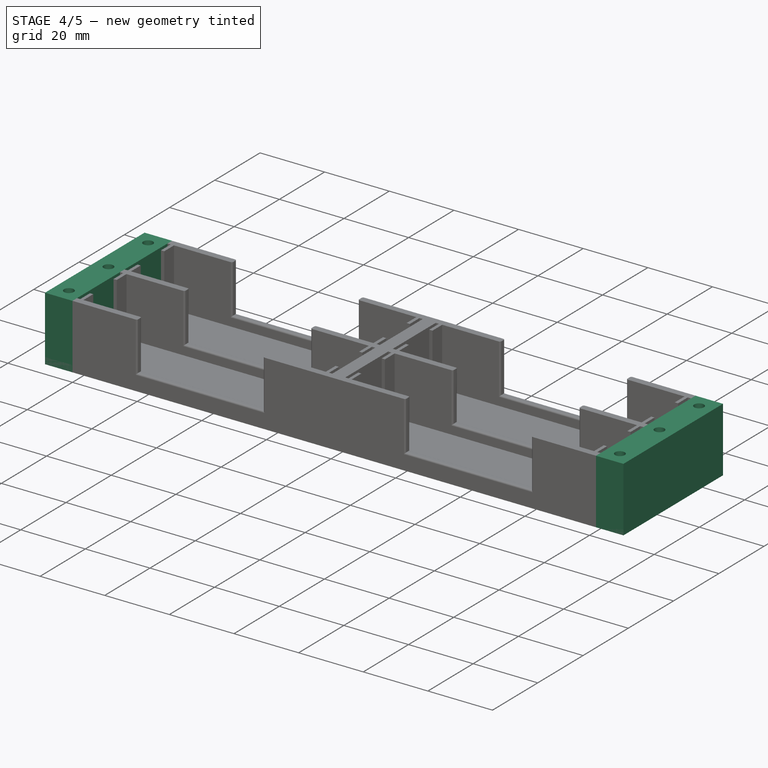
[diagram: stage 4 of 5 — iso view after this stage's code; geometry added in this stage tinted green]
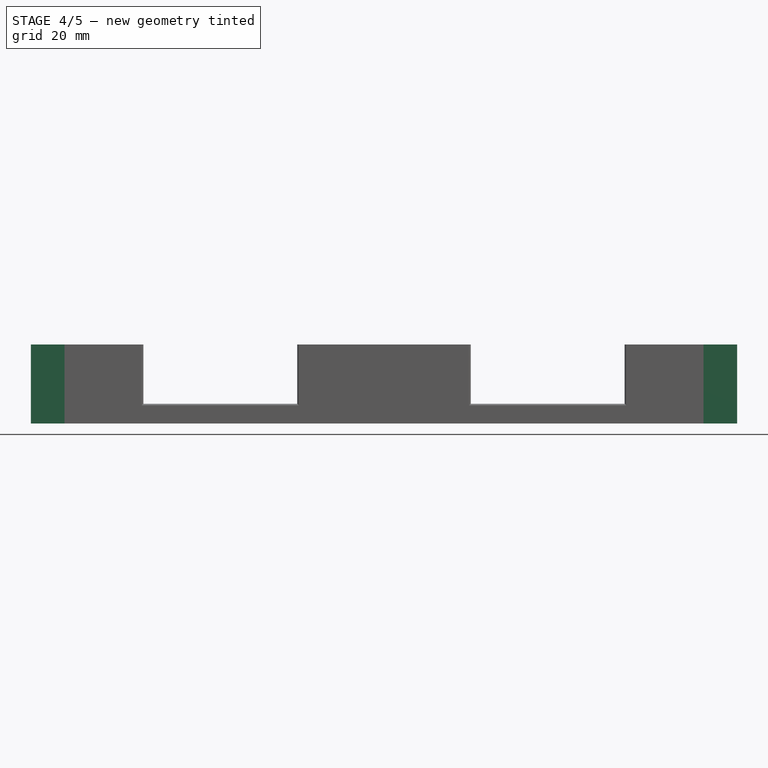
[diagram: stage 4 of 5 — front view after this stage's code; geometry added in this stage tinted green]
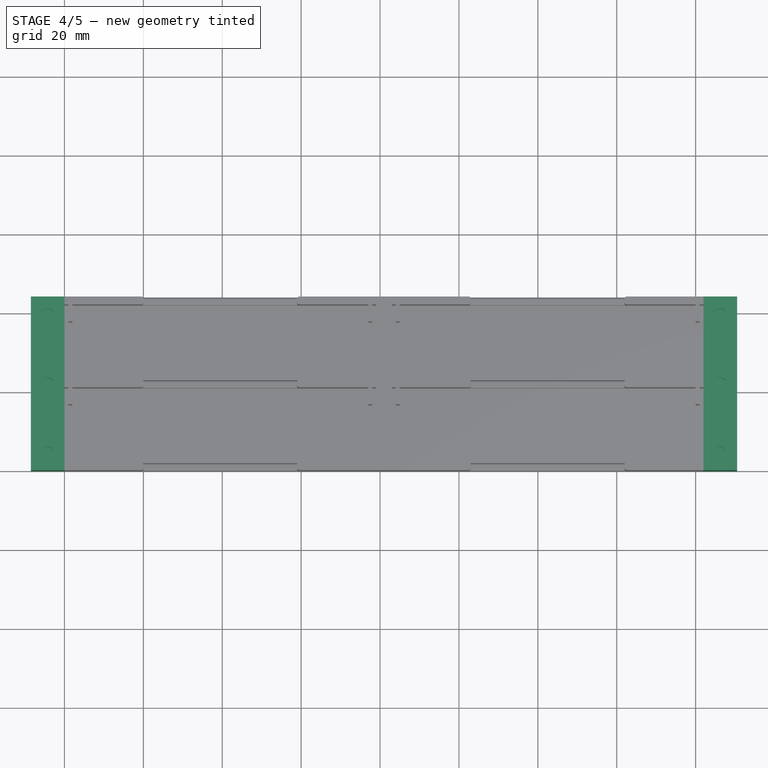
[diagram: stage 4 of 5 — top view after this stage's code; geometry added in this stage tinted green]
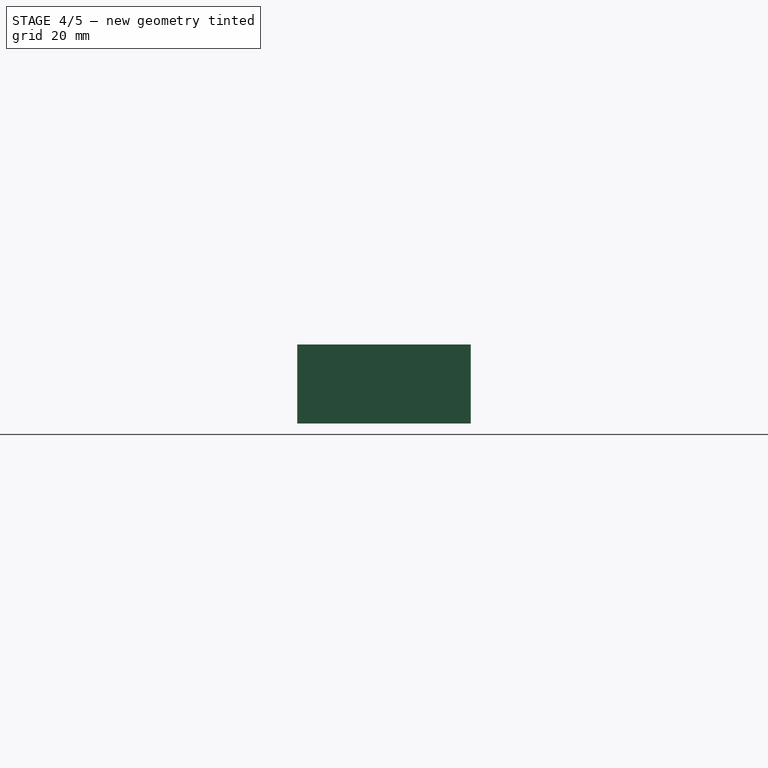
[diagram: stage 4 of 5 — right view after this stage's code; geometry added in this stage tinted green]
FEATURE [Sketcher::SketchObject] Sketch008
  FullyConstrained = false
  MapMode = 5
  Support = -> [XY_Plane]
  sketch-geometry (9):
    g0: Circle CenterX=-4.2508 CenterY=4.5 CenterZ=0 NormalX=0 NormalY=0 NormalZ=1 AngleXU=0 Radius=1.5
    g1: LineSegment StartX=-4.25 StartY=0 StartZ=0 EndX=-4.25 EndY=44 EndZ=0
    g2: LineSegment StartX=-5 StartY=0 StartZ=0 EndX=-5 EndY=4.5 EndZ=0
    g3: LineSegment StartX=-5 StartY=4.5 StartZ=0 EndX=-4.25 EndY=4.5 EndZ=0
    g4: Circle CenterX=-4.25 CenterY=39.5 CenterZ=0 NormalX=0 NormalY=0 NormalZ=1 AngleXU=0 Radius=1.5
    g5: LineSegment StartX=-4.99988 StartY=44 StartZ=0 EndX=-4.99988 EndY=39.5006 EndZ=0
    g6: LineSegment StartX=-4.99988 StartY=39.5006 StartZ=0 EndX=-4.25 EndY=39.5006 EndZ=0
    g7: Circle CenterX=-4.25453 CenterY=22 CenterZ=0 NormalX=0 NormalY=0 NormalZ=1 AngleXU=0 Radius=1.5
    g8: Circle CenterX=-4.25 CenterY=4.5 CenterZ=0 NormalX=0 NormalY=0 NormalZ=1 AngleXU=0 Radius=1.5
  constraints (16):
    c: Diameter(g0) = 3
    c: Vertical(g1)
    c: DistanceY(g1,g1) = 44
    c: Vertical(g2)
    c: DistanceY(g2,g2) = 4.5
    c: Coincident(g2,g3)
    c: PointOnObject(g3,g1)
    c: Horizontal(g3)
    c: DistanceX(g3,g3) = 0.75
    c: Diameter(g4) = 3
    c: Vertical(g5)
    c: Coincident(g5,g6)
    c: PointOnObject(g6,g1)
    c: Horizontal(g6)
    c: Diameter(g7) = 3
    c: Diameter(g8) = 3
FEATURE [Sketcher::SketchObject] Sketch009
  FullyConstrained = false
  MapMode = 5
  Support = -> [XY_Plane004]
  sketch-geometry (64):
    g0: LineSegment StartX=1.00027 StartY=2 StartZ=0 EndX=2.00027 EndY=2 EndZ=0
    g1: LineSegment StartX=2.00027 StartY=2 StartZ=0 EndX=2.00027 EndY=6.3 EndZ=0
    g2: LineSegment StartX=2.00027 StartY=6.3 StartZ=0 EndX=1.00027 EndY=6.3 EndZ=0
    g3: LineSegment StartX=1.00027 StartY=6.3 StartZ=0 EndX=1.00027 EndY=2 EndZ=0
    g4: LineSegment StartX=1 StartY=42 StartZ=0 EndX=2 EndY=42 EndZ=0
    g5: LineSegment StartX=2 StartY=42 StartZ=0 EndX=2 EndY=37.7 EndZ=0
    g6: LineSegment StartX=2 StartY=37.7 StartZ=0 EndX=1 EndY=37.7 EndZ=0
    g7: LineSegment StartX=1 StartY=37.7 StartZ=0 EndX=1 EndY=42 EndZ=0
    g8: LineSegment StartX=1 StartY=16.7 StartZ=0 EndX=2 EndY=16.7 EndZ=0
    g9: LineSegment StartX=2 StartY=16.7 StartZ=0 EndX=2 EndY=21 EndZ=0
    g10: LineSegment StartX=2 StartY=21 StartZ=0 EndX=1 EndY=21 EndZ=0
    g11: LineSegment StartX=1 StartY=21 StartZ=0 EndX=1 EndY=16.7 EndZ=0
    g12: LineSegment StartX=1 StartY=27.3 StartZ=0 EndX=2 EndY=27.3 EndZ=0
    g13: LineSegment StartX=2 StartY=27.3 StartZ=0 EndX=2 EndY=23 EndZ=0
    g14: LineSegment StartX=2 StartY=23 StartZ=0 EndX=1 EndY=23 EndZ=0
    g15: LineSegment StartX=1 StartY=23 StartZ=0 EndX=1 EndY=27.3 EndZ=0
    g16: LineSegment StartX=78 StartY=23 StartZ=0 EndX=77 EndY=23 EndZ=0
    g17: LineSegment StartX=77 StartY=23 StartZ=0 EndX=77 EndY=27.3 EndZ=0
    g18: LineSegment StartX=77 StartY=27.3 StartZ=0 EndX=78 EndY=27.3 EndZ=0
    g19: LineSegment StartX=78 StartY=27.3 StartZ=0 EndX=78 EndY=23 EndZ=0
    g20: LineSegment StartX=77 StartY=16.7 StartZ=0 EndX=78 EndY=16.7 EndZ=0
    g21: LineSegment StartX=78 StartY=16.7 StartZ=0 EndX=78 EndY=21 EndZ=0
    g22: LineSegment StartX=78 StartY=21 StartZ=0 EndX=77 EndY=21 EndZ=0
    g23: LineSegment StartX=77 StartY=21 StartZ=0 EndX=77 EndY=16.7 EndZ=0
    g24: LineSegment StartX=77 StartY=42 StartZ=0 EndX=78 EndY=42 EndZ=0
    g25: LineSegment StartX=78 StartY=42 StartZ=0 EndX=78 EndY=37.7 EndZ=0
    g26: LineSegment StartX=78 StartY=37.7 StartZ=0 EndX=77 EndY=37.7 EndZ=0
    g27: LineSegment StartX=77 StartY=37.7 StartZ=0 EndX=77 EndY=42 EndZ=0
    g28: LineSegment StartX=78 StartY=2 StartZ=0 EndX=77 EndY=2 EndZ=0
    g29: LineSegment StartX=77 StartY=2 StartZ=0 EndX=77 EndY=6.3 EndZ=0
    g30: LineSegment StartX=77 StartY=6.3 StartZ=0 EndX=78 EndY=6.3 EndZ=0
    g31: LineSegment StartX=78 StartY=6.3 StartZ=0 EndX=78 EndY=2 EndZ=0
    g32: LineSegment StartX=84 StartY=2 StartZ=0 EndX=85 EndY=2 EndZ=0
    g33: LineSegment StartX=85 StartY=2 StartZ=0 EndX=85 EndY=6.3 EndZ=0
    g34: LineSegment StartX=85 StartY=6.3 StartZ=0 EndX=84 EndY=6.3 EndZ=0
    g35: LineSegment StartX=84 StartY=6.3 StartZ=0 EndX=84 EndY=2 EndZ=0
    g36: LineSegment StartX=84 StartY=21 StartZ=0 EndX=85 EndY=21 EndZ=0
    g37: LineSegment StartX=85 StartY=21 StartZ=0 EndX=85 EndY=16.7 EndZ=0
    g38: LineSegment StartX=85 StartY=16.7 StartZ=0 EndX=84 EndY=16.7 EndZ=0
    g39: LineSegment StartX=84 StartY=16.7 StartZ=0 EndX=84 EndY=21 EndZ=0
    g40: LineSegment StartX=84 StartY=23 StartZ=0 EndX=85 EndY=23 EndZ=0
    g41: LineSegment StartX=85 StartY=23 StartZ=0 EndX=85 EndY=27.3 EndZ=0
    g42: LineSegment StartX=85 StartY=27.3 StartZ=0 EndX=84 EndY=27.3 EndZ=0
    g43: LineSegment StartX=84 StartY=27.3 StartZ=0 EndX=84 EndY=23 EndZ=0
    g44: LineSegment StartX=84 StartY=42 StartZ=0 EndX=85 EndY=42 EndZ=0
    g45: LineSegment StartX=85 StartY=42 StartZ=0 EndX=85 EndY=37.7 EndZ=0
    g46: LineSegment StartX=85 StartY=37.7 StartZ=0 EndX=84 EndY=37.7 EndZ=0
    g47: LineSegment StartX=84 StartY=37.7 StartZ=0 EndX=84 EndY=42 EndZ=0
    g48: LineSegment StartX=161 StartY=2 StartZ=0 EndX=160 EndY=2 EndZ=0
    g49: LineSegment StartX=160 StartY=2 StartZ=0 EndX=160 EndY=6.3 EndZ=0
    g50: LineSegment StartX=160 StartY=6.3 StartZ=0 EndX=161 EndY=6.3 EndZ=0
    g51: LineSegment StartX=161 StartY=6.3 StartZ=0 EndX=161 EndY=2 EndZ=0
    g52: LineSegment StartX=161 StartY=21 StartZ=0 EndX=160 EndY=21 EndZ=0
    g53: LineSegment StartX=160 StartY=21 StartZ=0 EndX=160 EndY=16.7 EndZ=0
    g54: LineSegment StartX=160 StartY=16.7 StartZ=0 EndX=161 EndY=16.7 EndZ=0
    g55: LineSegment StartX=161 StartY=16.7 StartZ=0 EndX=161 EndY=21 EndZ=0
    g56: LineSegment StartX=160 StartY=23 StartZ=0 EndX=161 EndY=23 EndZ=0
    g57: LineSegment StartX=161 StartY=23 StartZ=0 EndX=161 EndY=27.3 EndZ=0
    g58: LineSegment StartX=161 StartY=27.3 StartZ=0 EndX=160 EndY=27.3 EndZ=0
    g59: LineSegment StartX=160 StartY=27.3 StartZ=0 EndX=160 EndY=23 EndZ=0
    g60: LineSegment StartX=160 StartY=42 StartZ=0 EndX=161 EndY=42 EndZ=0
    g61: LineSegment StartX=161 StartY=42 StartZ=0 EndX=161 EndY=37.7 EndZ=0
    g62: LineSegment StartX=161 StartY=37.7 StartZ=0 EndX=160 EndY=37.7 EndZ=0
    g63: LineSegment StartX=160 StartY=37.7 StartZ=0 EndX=160 EndY=42 EndZ=0
  constraints (144):
    c: Coincident(g0,g1)
    c: Coincident(g1,g2)
    c: Coincident(g2,g3)
    c: Coincident(g3,g0)
    c: Horizontal(g0)
    c: Horizontal(g2)
    c: Vertical(g1)
    c: Vertical(g3)
    c: Coincident(g4,g5)
    c: Coincident(g5,g6)
    c: Coincident(g6,g7)
    c: Coincident(g7,g4)
    c: Horizontal(g4)
    c: Horizontal(g6)
    c: Vertical(g5)
    c: Vertical(g7)
    c: DistanceY(g5,g5) = 4.3
    c: DistanceX(g6,g6) = 1
    c: Coincident(g8,g9)
    c: Coincident(g9,g10)
    c: Coincident(g10,g11)
    c: Coincident(g11,g8)
    c: Horizontal(g8)
    c: Horizontal(g10)
    c: Vertical(g9)
    c: Vertical(g11)
    c: Coincident(g12,g13)
    c: Coincident(g13,g14)
    c: Coincident(g14,g15)
    c: Coincident(g15,g12)
    c: Horizontal(g12)
    c: Horizontal(g14)
    c: Vertical(g13)
    c: Vertical(g15)
    c: DistanceX(g12,g12) = 1
    c: DistanceY(g13,g13) = 4.3
    c: DistanceY(g9,g9) = 4.3
    c: DistanceX(g8,g8) = 1
    c: Coincident(g16,g17)
    c: Coincident(g17,g18)
    c: Coincident(g18,g19)
    c: Coincident(g19,g16)
    c: Horizontal(g16)
    c: Horizontal(g18)
    c: Vertical(g17)
    c: Vertical(g19)
    c: Coincident(g20,g21)
    c: Coincident(g21,g22)
    c: Coincident(g22,g23)
    c: Coincident(g23,g20)
    c: Horizontal(g20)
    c: Horizontal(g22)
    c: Vertical(g21)
    c: Vertical(g23)
    c: DistanceY(g23,g23) = 4.3
    c: DistanceY(g17,g17) = 4.3
    c: DistanceX(g20,g20) = 1
    c: DistanceX(g18,g18) = 1
    c: Coincident(g24,g25)
    c: Coincident(g25,g26)
    c: Coincident(g26,g27)
    c: Coincident(g27,g24)
    c: Horizontal(g24)
    c: Horizontal(g26)
    c: Vertical(g25)
    c: Vertical(g27)
    c: DistanceX(g24,g24) = 1
    c: DistanceY(g25,g25) = 4.3
    c: DistanceX(g2,g2) = 1
    c: DistanceY(g3,g3) = 4.3
    c: Coincident(g28,g29)
    c: Coincident(g29,g30)
    c: Coincident(g30,g31)
    c: Coincident(g31,g28)
    c: Horizontal(g28)
    c: Horizontal(g30)
    c: Vertical(g29)
    c: Vertical(g31)
    c: DistanceY(g29,g29) = 4.3
    c: DistanceX(g30,g30) = 1
    c: Coincident(g32,g33)
    c: Coincident(g33,g34)
    c: Coincident(g34,g35)
    c: Coincident(g35,g32)
    c: Horizontal(g32)
    c: Horizontal(g34)
    c: Vertical(g33)
    c: Vertical(g35)
    c: Coincident(g36,g37)
    c: Coincident(g37,g38)
    c: Coincident(g38,g39)
    c: Coincident(g39,g36)
    c: Horizontal(g36)
    c: Horizontal(g38)
    c: Vertical(g37)
    c: Vertical(g39)
    c: Coincident(g40,g41)
    c: Coincident(g41,g42)
    c: Coincident(g42,g43)
    c: Coincident(g43,g40)
    c: Horizontal(g40)
    c: Horizontal(g42)
    c: Vertical(g41)
    c: Vertical(g43)
    c: Coincident(g44,g45)
    c: Coincident(g45,g46)
    c: Coincident(g46,g47)
    c: Coincident(g47,g44)
    c: Horizontal(g44)
    c: Horizontal(g46)
    c: Vertical(g45)
    c: Vertical(g47)
    c: Coincident(g48,g49)
    c: Coincident(g49,g50)
    c: Coincident(g50,g51)
    c: Coincident(g51,g48)
    c: Horizontal(g48)
    c: Horizontal(g50)
    c: Vertical(g49)
    c: Vertical(g51)
    c: Coincident(g52,g53)
    c: Coincident(g53,g54)
    c: Coincident(g54,g55)
    c: Coincident(g55,g52)
    c: Horizontal(g52)
    c: Horizontal(g54)
    c: Vertical(g53)
    c: Vertical(g55)
    c: Coincident(g56,g57)
    c: Coincident(g57,g58)
    c: Coincident(g58,g59)
    c: Coincident(g59,g56)
    c: Horizontal(g56)
    c: Horizontal(g58)
    c: Vertical(g57)
    c: Vertical(g59)
    c: Coincident(g60,g61)
    c: Coincident(g61,g62)
    c: Coincident(g62,g63)
    c: Coincident(g63,g60)
    c: Horizontal(g60)
    c: Horizontal(g62)
    c: Vertical(g61)
    c: Vertical(g63)
FEATURE [Part::Extrusion] Extrude007  label="Terminal walls"
  Base = -> Sketch009
  Dir = (0,0,1)
  DirMode = 2
  FaceMakerClass = Part::FaceMakerBullseye
  LengthFwd = 20
  LengthRev = 0
  Solid = true
  Symmetric = false
FEATURE [Sketcher::SketchObject] Sketch010
  FullyConstrained = true
  MapMode = 5
  Support = -> [XY_Plane004]
FEATURE [Sketcher::SketchObject] Sketch011
  FullyConstrained = true
  MapMode = 5
  Support = -> [XY_Plane004]
FEATURE [Sketcher::SketchObject] Sketch012
  FullyConstrained = true
  MapMode = 5
  Support = -> [XY_Plane004]
FEATURE [PartDesign::Body] Body004  label="terminal walls"
  Group = -> [Sketch009,Sketch010,Sketch011,Sketch012]
  Origin = -> Origin004
  Placement = pos=(0,0,2) rot=(0,0,1;0rad)
FEATURE [Sketcher::SketchObject] Sketch013
  FullyConstrained = false
  MapMode = 5
  Support = -> [XY_Plane]
  sketch-geometry (8):
    g0: LineSegment StartX=0 StartY=0 StartZ=0 EndX=-8.5 EndY=0 EndZ=0
    g1: LineSegment StartX=-8.5 StartY=0 StartZ=0 EndX=-8.5 EndY=44 EndZ=0
    g2: LineSegment StartX=-8.5 StartY=44 StartZ=0 EndX=0 EndY=44 EndZ=0
    g3: LineSegment StartX=0 StartY=44 StartZ=0 EndX=0 EndY=0 EndZ=0
    g4: LineSegment StartX=162 StartY=0 StartZ=0 EndX=170.5 EndY=0 EndZ=0
    g5: LineSegment StartX=170.5 StartY=0 StartZ=0 EndX=170.5 EndY=44 EndZ=0
    g6: LineSegment StartX=170.5 StartY=44 StartZ=0 EndX=162 EndY=44 EndZ=0
    g7: LineSegment StartX=162 StartY=44 StartZ=0 EndX=162 EndY=0 EndZ=0
  constraints (21):
    c: Coincident(g0,g1)
    c: Coincident(g1,g2)
    c: Coincident(g2,g3)
    c: Coincident(g3,g0)
    c: Horizontal(g0)
    c: Horizontal(g2)
    c: Vertical(g1)
    c: Vertical(g3)
    c: Coincident(g0,g-1)
    c: Coincident(g4,g5)
    c: Coincident(g5,g6)
    c: Coincident(g6,g7)
    c: Coincident(g7,g4)
    c: Horizontal(g4)
    c: Horizontal(g6)
    c: Vertical(g5)
    c: Vertical(g7)
    c: DistanceY(g1,g1) = 44
    c: DistanceX(g0,g0) = 8.5
    c: DistanceX(g4,g4) = 8.5
    c: DistanceY(g5,g5) = 44
FEATURE [Sketcher::SketchObject] Sketch014
  FullyConstrained = true
  MapMode = 5
  Support = -> [XY_Plane]
  sketch-geometry (4):
    g0: LineSegment StartX=0 StartY=0 StartZ=0 EndX=-8.5 EndY=0 EndZ=0
    g1: LineSegment StartX=-8.5 StartY=0 StartZ=0 EndX=-8.5 EndY=44 EndZ=0
    g2: LineSegment StartX=-8.5 StartY=44 StartZ=0 EndX=0 EndY=44 EndZ=0
    g3: LineSegment StartX=0 StartY=44 StartZ=0 EndX=0 EndY=0 EndZ=0
  constraints (11):
    c: Coincident(g0,g1)
    c: Coincident(g1,g2)
    c: Coincident(g2,g3)
    c: Coincident(g3,g0)
    c: Horizontal(g0)
    c: Horizontal(g2)
    c: Vertical(g1)
    c: Vertical(g3)
    c: Coincident(g0,g-1)
    c: DistanceX(g2,g2) = 8.5
    c: DistanceY(g1,g1) = 44
FEATURE [PartDesign::Pad] Pad
  Direction = (0,0,1)
  Length = 20
  Length2 = 10
  Profile = -> Sketch014
  ReferenceAxis = -> Sketch014 [N_Axis]
  Type = 0
FEATURE [PartDesign::Hole] Hole
  BaseFeature = -> Pad
  CustomThreadClearance = 0
  Depth = 4
  DepthType = 0
  Diameter = 3
  DrillForDepth = false
  DrillPoint = 0
  DrillPointAngle = 118
  HoleCutCountersinkAngle = 90
  HoleCutCustomValues = false
  HoleCutDepth = 0
  HoleCutDiameter = 6.1
  HoleCutType = 0
  ModelThread = false
  Profile = -> Sketch008
  Reversed = true
  Tapered = false
  TaperedAngle = 90
  ThreadClass = 0
  ThreadDepth = 4
  ThreadDepthType = 0
  ThreadDirection = 0
  ThreadFit = 0
  ThreadSize = 0
  ThreadType = 0
  Threaded = false
  UseCustomThreadClearance = false
FEATURE [Sketcher::SketchObject] Sketch016
  FullyConstrained = false
  MapMode = 5
  Support = -> [XY_Plane005]
  sketch-geometry (10):
    g0: Circle CenterX=166.245 CenterY=39.5 CenterZ=0 NormalX=0 NormalY=0 NormalZ=1 AngleXU=0 Radius=1.5
    g1: LineSegment StartX=161.998 StartY=44 StartZ=0 EndX=166.248 EndY=44 EndZ=0
    g2: LineSegment StartX=161.998 StartY=0 StartZ=0 EndX=166.248 EndY=0 EndZ=0
    g3: LineSegment StartX=166.248 StartY=0 StartZ=0 EndX=166.248 EndY=44 EndZ=0
    g4: LineSegment StartX=167 StartY=44 StartZ=0 EndX=167 EndY=39.5 EndZ=0
    g5: LineSegment StartX=167 StartY=39.5 StartZ=0 EndX=166.248 EndY=39.5 EndZ=0
    g6: Circle CenterX=166.248 CenterY=22 CenterZ=0 NormalX=0 NormalY=0 NormalZ=1 AngleXU=0 Radius=1.5
    g7: LineSegment StartX=166.998 StartY=0 StartZ=0 EndX=166.998 EndY=4.5 EndZ=0
    g8: LineSegment StartX=166.998 StartY=4.5 StartZ=0 EndX=166.248 EndY=4.5 EndZ=0
    g9: Circle CenterX=166.248 CenterY=4.5 CenterZ=0 NormalX=0 NormalY=0 NormalZ=1 AngleXU=0 Radius=1.5
  constraints (20):
    c: Diameter(g0) = 3
    c: Horizontal(g1)
    c: DistanceX(g1,g1) = 4.25
    c: PointOnObject(g2,g-1)
    c: PointOnObject(g2,g-1)
    c: DistanceX(g2,g2) = 4.25
    c: Coincident(g2,g3)
    c: Coincident(g3,g1)
    c: Vertical(g3)
    c: DistanceY(g3,g3) = 44
    c: Vertical(g4)
    c: Coincident(g4,g5)
    c: PointOnObject(g5,g3)
    c: Horizontal(g5)
    c: Equal(g0,g6) = 3
    c: PointOnObject(g7,g-1)
    c: Vertical(g7)
    c: Coincident(g7,g8)
    c: PointOnObject(g8,g3)
    c: Horizontal(g8)
FEATURE [Sketcher::SketchObject] Sketch017
  FullyConstrained = false
  MapMode = 5
  Support = -> [XY_Plane005]
  sketch-geometry (4):
    g0: LineSegment StartX=162 StartY=0 StartZ=0 EndX=170.5 EndY=0 EndZ=0
    g1: LineSegment StartX=170.5 StartY=0 StartZ=0 EndX=170.5 EndY=44 EndZ=0
    g2: LineSegment StartX=170.5 StartY=44 StartZ=0 EndX=162 EndY=44 EndZ=0
    g3: LineSegment StartX=162 StartY=44 StartZ=0 EndX=162 EndY=0 EndZ=0
  constraints (10):
    c: Coincident(g0,g1)
    c: Coincident(g1,g2)
    c: Coincident(g2,g3)
    c: Coincident(g3,g0)
    c: Horizontal(g0)
    c: Horizontal(g2)
    c: Vertical(g1)
    c: Vertical(g3)
    c: DistanceY(g1,g1) = 44
    c: DistanceX(g2,g2) = 8.5
FEATURE [PartDesign::Pad] Pad001
  Direction = (0,0,1)
  Length = 20
  Length2 = 10
  Profile = -> Sketch017
  ReferenceAxis = -> Sketch017 [N_Axis]
  Type = 0
FEATURE [PartDesign::Hole] Hole001
  BaseFeature = -> Pad001
  CustomThreadClearance = 0
  Depth = 4
  DepthType = 0
  Diameter = 3
  DrillForDepth = false
  DrillPoint = 0
  DrillPointAngle = 118
  HoleCutCountersinkAngle = 90
  HoleCutCustomValues = false
  HoleCutDepth = 0
  HoleCutDiameter = 6.1
  HoleCutType = 0
  ModelThread = false
  Profile = -> Sketch016
  Reversed = true
  Tapered = false
  TaperedAngle = 90
  ThreadClass = 0
  ThreadDepth = 4
  ThreadDepthType = 0
  ThreadDirection = 0
  ThreadFit = 0
  ThreadSize = 0
  ThreadType = 0
  Threaded = false
  UseCustomThreadClearance = false
FEATURE [Sketcher::SketchObject] Sketch018
  FullyConstrained = false
  MapMode = 5
  Placement = pos=(0,0,20) rot=(0,0,1;0rad)
  Support = -> [Hole]
  sketch-geometry (9):
    g0: Circle CenterX=-4.2508 CenterY=4.5 CenterZ=0 NormalX=0 NormalY=0 NormalZ=1 AngleXU=0 Radius=1.5
    g1: LineSegment StartX=-4.25 StartY=0 StartZ=0 EndX=-4.25 EndY=44 EndZ=0
    g2: LineSegment StartX=-5 StartY=0 StartZ=0 EndX=-5 EndY=4.5 EndZ=0
    g3: LineSegment StartX=-5 StartY=4.5 StartZ=0 EndX=-4.25 EndY=4.5 EndZ=0
    g4: Circle CenterX=-4.25 CenterY=39.5 CenterZ=0 NormalX=0 NormalY=0 NormalZ=1 AngleXU=0 Radius=1.5
    g5: LineSegment StartX=-4.99988 StartY=44 StartZ=0 EndX=-4.99988 EndY=39.5006 EndZ=0
    g6: LineSegment StartX=-4.99988 StartY=39.5006 StartZ=0 EndX=-4.25 EndY=39.5006 EndZ=0
    g7: Circle CenterX=-4.25453 CenterY=22 CenterZ=0 NormalX=0 NormalY=0 NormalZ=1 AngleXU=0 Radius=1.5
    g8: Circle CenterX=-4.25 CenterY=4.5 CenterZ=0 NormalX=0 NormalY=0 NormalZ=1 AngleXU=0 Radius=1.5
  constraints (16):
    c: Diameter(g0) = 3
    c: Vertical(g1)
    c: DistanceY(g1,g1) = 44
    c: Vertical(g2)
    c: DistanceY(g2,g2) = 4.5
    c: Coincident(g2,g3)
    c: PointOnObject(g3,g1)
    c: Horizontal(g3)
    c: DistanceX(g3,g3) = 0.75
    c: Diameter(g4) = 3
    c: Vertical(g5)
    c: Coincident(g5,g6)
    c: PointOnObject(g6,g1)
    c: Horizontal(g6)
    c: Diameter(g7) = 3
    c: Diameter(g8) = 3
FEATURE [PartDesign::Hole] Hole002
  BaseFeature = -> Hole
  CustomThreadClearance = 0
  Depth = 4
  DepthType = 0
  Diameter = 3
  DrillForDepth = false
  DrillPoint = 0
  DrillPointAngle = 118
  HoleCutCountersinkAngle = 90
  HoleCutCustomValues = false
  HoleCutDepth = 0
  HoleCutDiameter = 6.1
  HoleCutType = 0
  ModelThread = false
  Profile = -> Sketch018
  Tapered = false
  TaperedAngle = 90
  ThreadClass = 0
  ThreadDepth = 4
  ThreadDepthType = 0
  ThreadDirection = 0
  ThreadFit = 0
  ThreadSize = 0
  ThreadType = 0
  Threaded = false
  UseCustomThreadClearance = false
FEATURE [PartDesign::Body] Body  label="floor and  Sides"
  Group = -> [Sketch,Sketch002,Sketch003,Sketch008,Sketch013,Sketch014,Pad,Hole,Sketch018,Hole002]
  Origin = -> Origin
  Tip = -> Hole002
FEATURE [Sketcher::SketchObject] Sketch019
  FullyConstrained = false
  MapMode = 5
  Placement = pos=(0,0,20) rot=(0,0,1;0rad)
  Support = -> [Hole001]
  sketch-geometry (10):
    g0: Circle CenterX=166.245 CenterY=39.5 CenterZ=0 NormalX=0 NormalY=0 NormalZ=1 AngleXU=0 Radius=1.5
    g1: LineSegment StartX=161.998 StartY=44 StartZ=0 EndX=166.248 EndY=44 EndZ=0
    g2: LineSegment StartX=161.998 StartY=0 StartZ=0 EndX=166.248 EndY=0 EndZ=0
    g3: LineSegment StartX=166.248 StartY=0 StartZ=0 EndX=166.248 EndY=44 EndZ=0
    g4: LineSegment StartX=167 StartY=44 StartZ=0 EndX=167 EndY=39.5 EndZ=0
    g5: LineSegment StartX=167 StartY=39.5 StartZ=0 EndX=166.248 EndY=39.5 EndZ=0
    g6: Circle CenterX=166.248 CenterY=22 CenterZ=0 NormalX=0 NormalY=0 NormalZ=1 AngleXU=0 Radius=1.5
    g7: LineSegment StartX=166.998 StartY=0 StartZ=0 EndX=166.998 EndY=4.5 EndZ=0
    g8: LineSegment StartX=166.998 StartY=4.5 StartZ=0 EndX=166.248 EndY=4.5 EndZ=0
    g9: Circle CenterX=166.248 CenterY=4.5 CenterZ=0 NormalX=0 NormalY=0 NormalZ=1 AngleXU=0 Radius=1.5
  constraints (20):
    c: Diameter(g0) = 3
    c: Horizontal(g1)
    c: DistanceX(g1,g1) = 4.25
    c: PointOnObject(g2,g-1)
    c: PointOnObject(g2,g-1)
    c: DistanceX(g2,g2) = 4.25
    c: Coincident(g2,g3)
    c: Coincident(g3,g1)
    c: Vertical(g3)
    c: DistanceY(g3,g3) = 44
    c: Vertical(g4)
    c: Coincident(g4,g5)
    c: PointOnObject(g5,g3)
    c: Horizontal(g5)
    c: Equal(g0,g6) = 3
    c: PointOnObject(g7,g-1)
    c: Vertical(g7)
    c: Coincident(g7,g8)
    c: PointOnObject(g8,g3)
    c: Horizontal(g8)
FEATURE [PartDesign::Hole] Hole003
  BaseFeature = -> Hole001
  CustomThreadClearance = 0
  Depth = 4
  DepthType = 0
  Diameter = 3
  DrillForDepth = false
  DrillPoint = 0
  DrillPointAngle = 118
  HoleCutCountersinkAngle = 90
  HoleCutCustomValues = false
  HoleCutDepth = 0
  HoleCutDiameter = 6.1
  HoleCutType = 0
  ModelThread = false
  Profile = -> Sketch019
  Tapered = false
  TaperedAngle = 90
  ThreadClass = 0
  ThreadDepth = 4
  ThreadDepthType = 0
  ThreadDirection = 0
  ThreadFit = 0
  ThreadSize = 0
  ThreadType = 0
  Threaded = false
  UseCustomThreadClearance = false
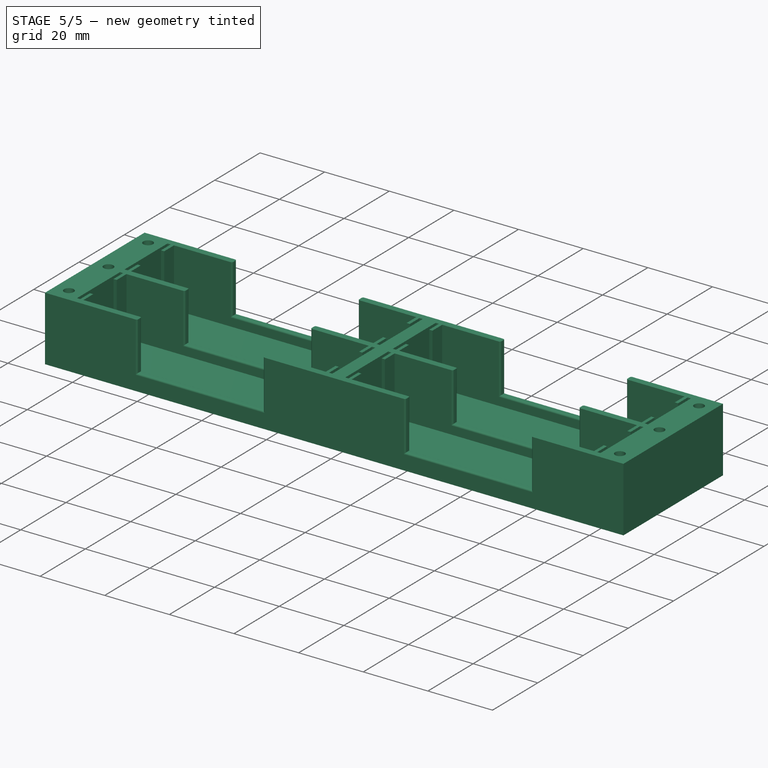
[diagram: stage 5 of 5 — iso view after this stage's code; geometry added in this stage tinted green]
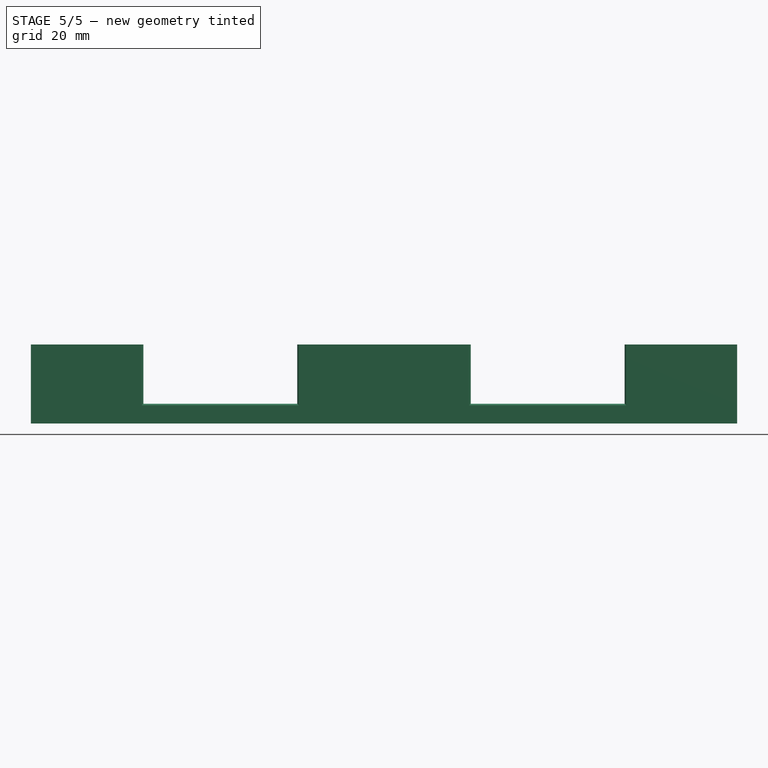
[diagram: stage 5 of 5 — front view after this stage's code; geometry added in this stage tinted green]
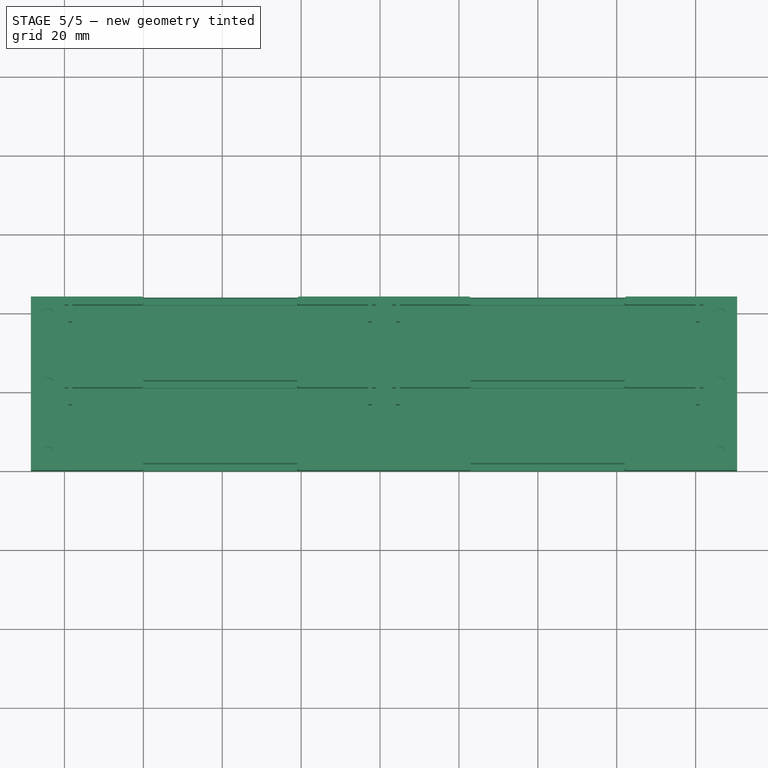
[diagram: stage 5 of 5 — top view after this stage's code; geometry added in this stage tinted green]
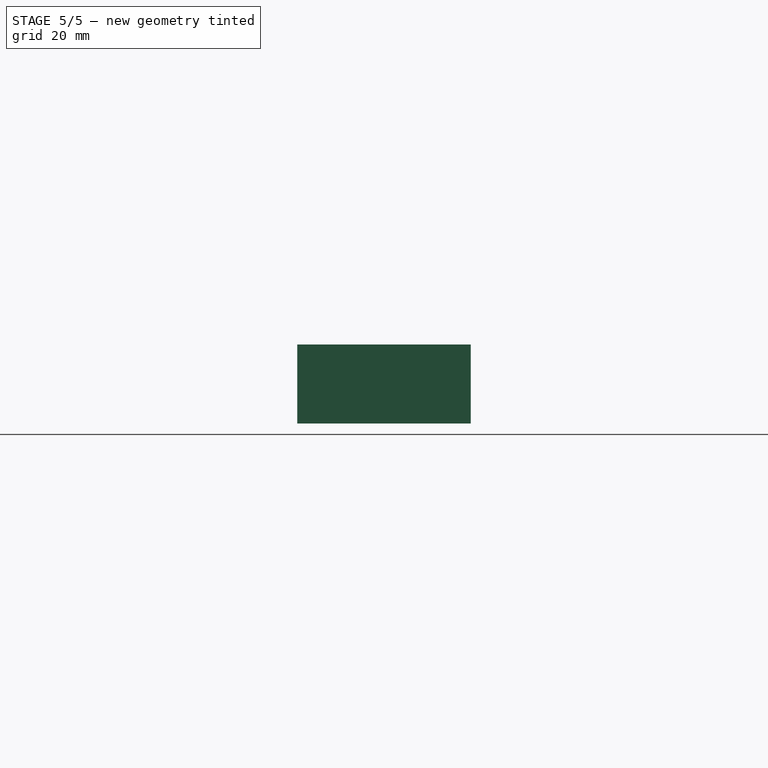
[diagram: stage 5 of 5 — right view after this stage's code; geometry added in this stage tinted green]
FEATURE [Sketcher::SketchObject] Sketch
  FullyConstrained = true
  MapMode = 5
  Support = -> [XY_Plane]
  sketch-geometry (4):
    g0: LineSegment StartX=0 StartY=0 StartZ=0 EndX=162 EndY=0 EndZ=0
    g1: LineSegment StartX=162 StartY=0 StartZ=0 EndX=162 EndY=44 EndZ=0
    g2: LineSegment StartX=162 StartY=44 StartZ=0 EndX=0 EndY=44 EndZ=0
    g3: LineSegment StartX=0 StartY=44 StartZ=0 EndX=0 EndY=0 EndZ=0
  constraints (11):
    c: Coincident(g0,g1)
    c: Coincident(g1,g2)
    c: Coincident(g2,g3)
    c: Coincident(g3,g0)
    c: Horizontal(g0)
    c: Horizontal(g2)
    c: Vertical(g1)
    c: Vertical(g3)
    c: Coincident(g0,g-1)
    c: DistanceX(g2,g2) = 162
    c: DistanceY(g3,g3) = 44
FEATURE [Sketcher::SketchObject] Sketch002
  FullyConstrained = false
  MapMode = 5
  Placement = pos=(0,0,0) rot=(1,0,0;1.5708rad)
  Support = -> [XZ_Plane]
  sketch-geometry (16):
    g0: LineSegment StartX=0 StartY=2 StartZ=0 EndX=0 EndY=20 EndZ=0
    g1: LineSegment StartX=0 StartY=20 StartZ=0 EndX=20 EndY=20 EndZ=0
    g2: LineSegment StartX=162 StartY=2 StartZ=0 EndX=162 EndY=20 EndZ=0
    g3: LineSegment StartX=162 StartY=20 StartZ=0 EndX=142 EndY=20 EndZ=0
    g4: LineSegment StartX=142 StartY=20 StartZ=0 EndX=142 EndY=5 EndZ=0
    g5: LineSegment StartX=20 StartY=5 StartZ=0 EndX=59 EndY=5 EndZ=0
    g6: LineSegment StartX=59 StartY=20 StartZ=0 EndX=79 EndY=20 EndZ=0
    g7: LineSegment StartX=79 StartY=20 StartZ=0 EndX=79 EndY=2 EndZ=0
    g8: LineSegment StartX=142 StartY=5 StartZ=0 EndX=103 EndY=5 EndZ=0
    g9: LineSegment StartX=103 StartY=5 StartZ=0 EndX=103 EndY=20 EndZ=0
    g10: LineSegment StartX=103 StartY=20 StartZ=0 EndX=83 EndY=20 EndZ=0
    g11: LineSegment StartX=83 StartY=20 StartZ=0 EndX=83 EndY=2 EndZ=0
    g12: LineSegment StartX=79 StartY=2 StartZ=0 EndX=0 EndY=2 EndZ=0
    g13: LineSegment StartX=20 StartY=20 StartZ=0 EndX=20 EndY=5 EndZ=0
    g14: LineSegment StartX=59 StartY=20 StartZ=0 EndX=59 EndY=5 EndZ=0
    g15: LineSegment StartX=83 StartY=2 StartZ=0 EndX=162 EndY=2 EndZ=0
  constraints (45):
    c: PointOnObject(g0,g-2)
    c: Vertical(g0)
    c: Coincident(g0,g1)
    c: Horizontal(g1)
    c: Vertical(g2)
    c: Coincident(g2,g3)
    c: Horizontal(g3)
    c: Coincident(g3,g4)
    c: Vertical(g4)
    c: Horizontal(g5)
    c: Horizontal(g6)
    c: Coincident(g6,g7)
    c: Vertical(g7)
    c: Coincident(g4,g8)
    c: Horizontal(g8)
    c: Coincident(g8,g9)
    c: Vertical(g9)
    c: Coincident(g9,g10)
    c: Horizontal(g10)
    c: Coincident(g10,g11)
    c: Vertical(g11)
    c: Coincident(g7,g12)
    c: Coincident(g12,g0)
    c: Horizontal(g12)
    c: Coincident(g1,g13)
    c: Coincident(g13,g5)
    c: Vertical(g13)
    c: Coincident(g6,g14)
    c: Coincident(g14,g5)
    c: Vertical(g14)
    c: Coincident(g11,g15)
    c: Coincident(g15,g2)
    c: Horizontal(g15)
    c: DistanceX(g10,g10) = 20
    c: DistanceX(g3,g3) = 20
    c: DistanceX(g8,g8) = 39
    c: DistanceY(g9,g9) = 15
    c: DistanceY(g11,g11) = 18
    c: DistanceY(g4,g4) = 15
    c: DistanceY(g7,g7) = 18
    c: DistanceY(g14,g14) = 15
    c: DistanceX(g6,g6) = 20
    c: DistanceX(g5,g5) = 39
    c: DistanceX(g1,g1) = 20
    c: DistanceY(g13,g13) = 15
FEATURE [Part::Extrusion] Extrude  label="front side"
  Base = -> Sketch002
  Dir = (0,-1,2e-16)
  DirMode = 2
  FaceMakerClass = Part::FaceMakerBullseye
  LengthFwd = 2
  LengthRev = 0
  Reversed = true
  Solid = true
  Symmetric = false
FEATURE [Sketcher::SketchObject] Sketch003
  FullyConstrained = false
  MapMode = 5
  Placement = pos=(0,0,0) rot=(1,0,0;1.5708rad)
  Support = -> [XZ_Plane]
  sketch-geometry (4):
    g0: LineSegment StartX=79 StartY=2 StartZ=0 EndX=83 EndY=2 EndZ=0
    g1: LineSegment StartX=83 StartY=2 StartZ=0 EndX=83 EndY=20 EndZ=0
    g2: LineSegment StartX=83 StartY=20 StartZ=0 EndX=79 EndY=20 EndZ=0
    g3: LineSegment StartX=79 StartY=20 StartZ=0 EndX=79 EndY=2 EndZ=0
  constraints (10):
    c: Coincident(g0,g1)
    c: Coincident(g1,g2)
    c: Coincident(g2,g3)
    c: Coincident(g3,g0)
    c: Horizontal(g0)
    c: Horizontal(g2)
    c: Vertical(g1)
    c: Vertical(g3)
    c: DistanceX(g2,g2) = 4
    c: DistanceY(g1,g1) = 18
FEATURE [Part::Extrusion] Extrude001  label="central divider"
  Base = -> Sketch003
  Dir = (0,-1,-2e-16)
  DirMode = 2
  FaceMakerClass = Part::FaceMakerBullseye
  LengthFwd = 44
  LengthRev = 0
  Reversed = true
  Solid = true
  Symmetric = false
FEATURE [Part::Mirroring] Part__Mirroring  label="back side"
  Base = (0,0,0)
  Normal = (0,1,0)
  Placement = pos=(0,44,0) rot=(0,0,1;0rad)
  Source = -> Extrude
FEATURE [Part::Mirroring] Part__Mirroring001  label="middle barrier"
  Base = (0,0,0)
  Normal = (0,1,0)
  Placement = pos=(0,23,0) rot=(0,0,1;0rad)
  Source = -> Extrude
FEATURE [Part::Fillet] Fillet  label="front row"
  Base = -> Extrude
  Edges = 12 edges r=0.5: [Edge9,Edge10,Edge12,Edge13,Edge15,Edge16,Edge42,Edge43,Edge45,Edge46,Edge47,Edge48]
FEATURE [Part::Fillet] Fillet001  label="middle row"
  Base = -> Part__Mirroring001
  Edges = 12 edges r=0.5: [Edge9,Edge10,Edge12,Edge13,Edge15,Edge16,Edge42,Edge43,Edge45,Edge46,Edge47,Edge48]
FEATURE [Part::Fillet] Fillet002  label="back row"
  Base = -> Part__Mirroring
  Edges = 12 edges r=0.5: [Edge9,Edge10,Edge12,Edge13,Edge15,Edge16,Edge42,Edge43,Edge45,Edge46,Edge47,Edge48]
FEATURE [Part::Extrusion] Extrude004  label="BASE"
  Base = -> Sketch
  Dir = (0,0,1)
  DirMode = 2
  FaceMakerClass = Part::FaceMakerBullseye
  LengthFwd = 2
  LengthRev = 0
  Solid = true
  Symmetric = false
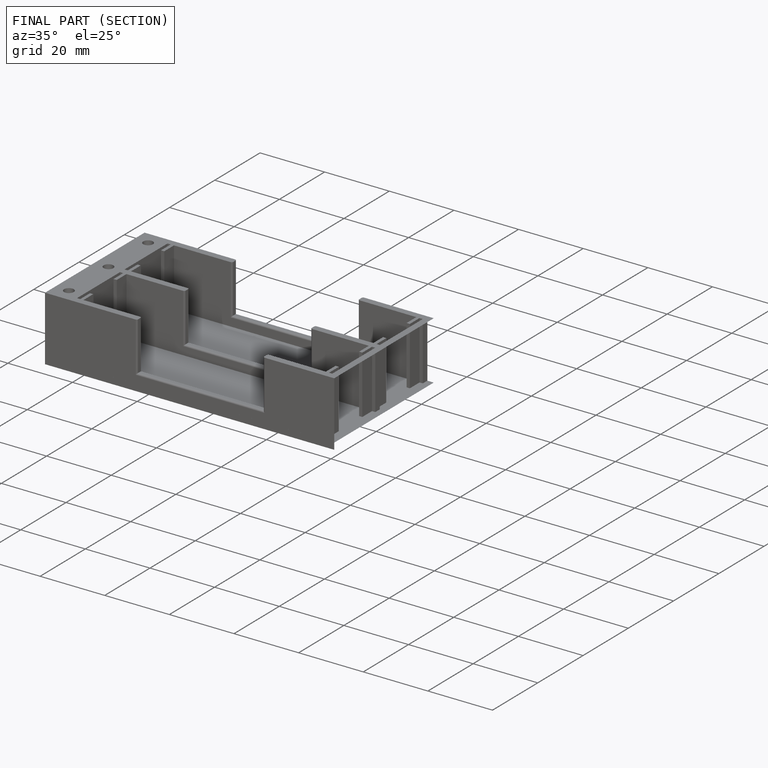
[diagram: finished part — half-section view (interior)]
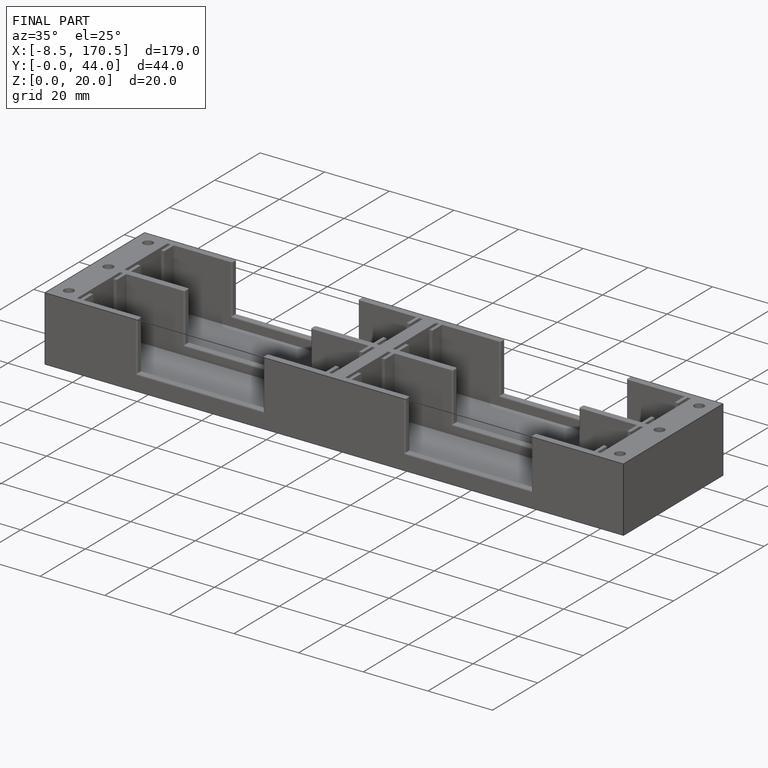
[diagram: finished part — iso view with bounding-box wireframe]
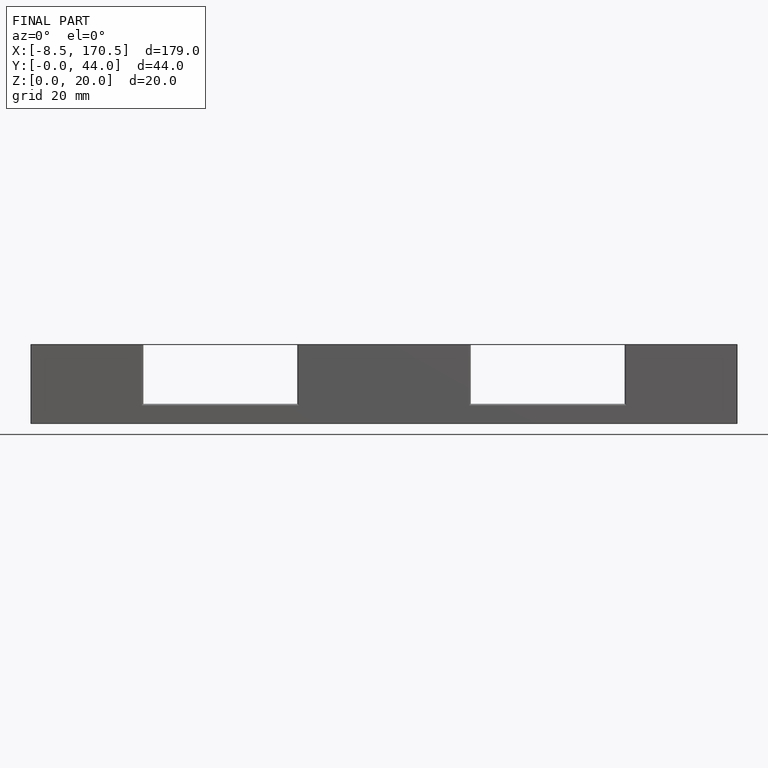
[diagram: finished part — front view with bounding-box wireframe]
